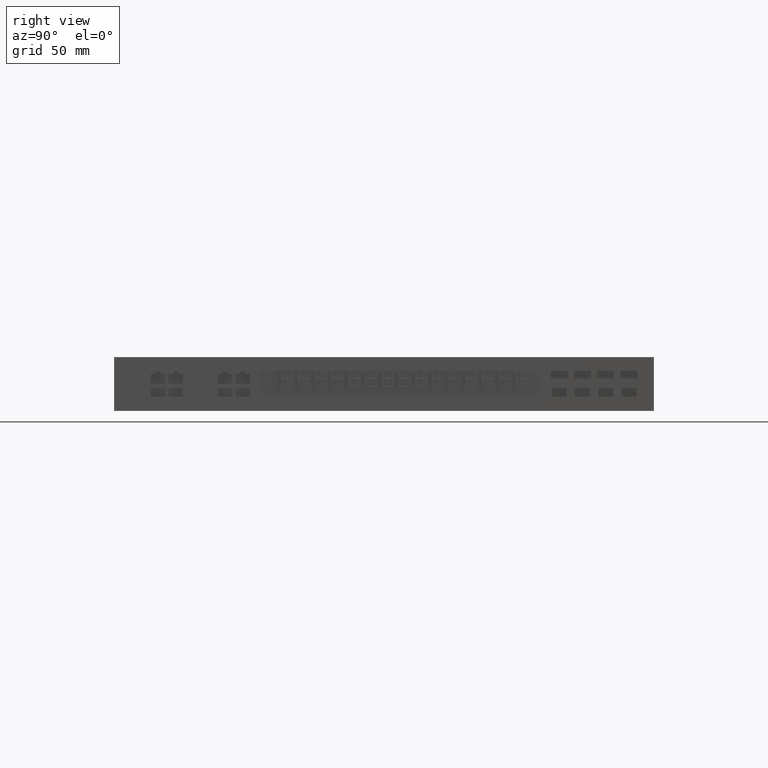
[diagram: clean part render]
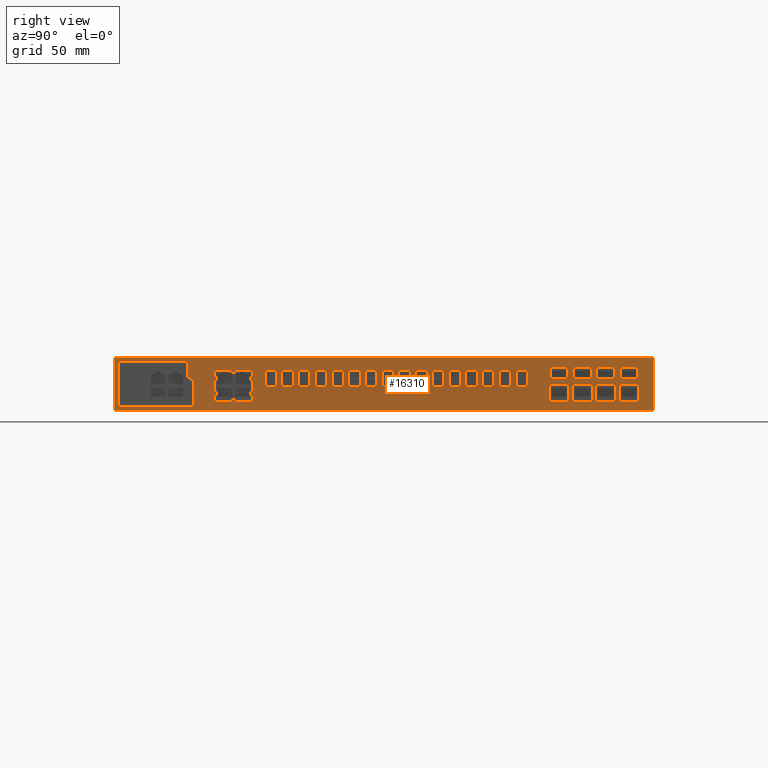
[diagram: same view with one face highlighted and labeled with its STEP entity id]
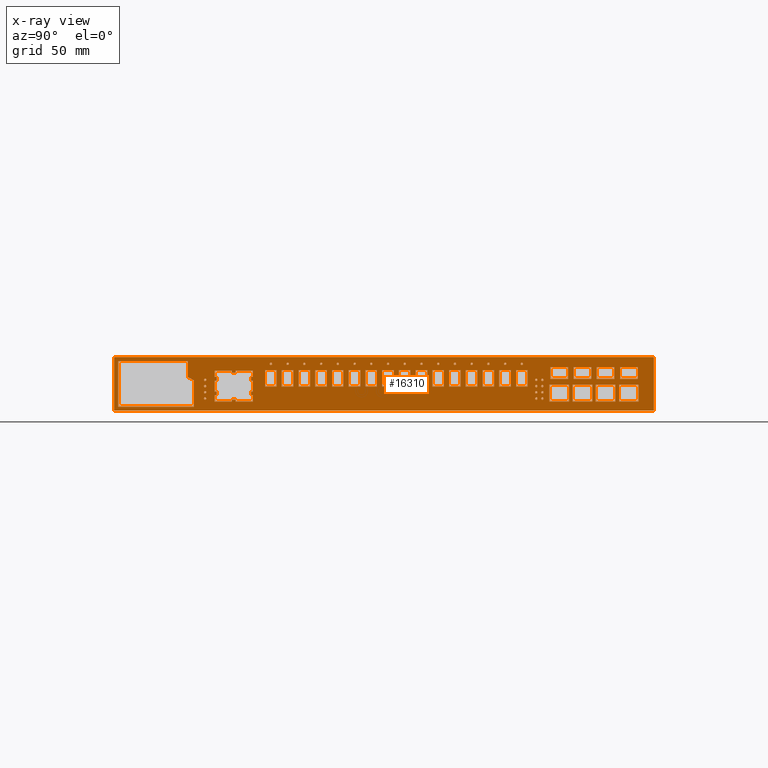
[diagram: x-ray of the same camera — body ghosted, the highlighted face saturated]
A machine part, right view. The second image highlights one B-rep face of the part: STEP entity #16310.
The next image is the same camera in x-ray: the body ghosted, the highlighted face saturated — about 0% of this face is hidden behind the body in this view.
In plain terms, the highlighted planar face has unit normal (1, 0, 0).
Its self-contained STEP definition (entity closure, byte-faithful):
#200=CARTESIAN_POINT('',(221.306013042565,4.40363222366137,
374.99999999998));
#210=VERTEX_POINT('',#200);
#240=CARTESIAN_POINT('',(0.,4.40363222366137,374.99999999998));
#250=DIRECTION('',(-1.,0.,0.));
#260=VECTOR('',#250,1.);
#270=LINE('',#240,#260);
#280=CARTESIAN_POINT('',(-220.693986957435,4.40363222366137,
374.99999999998));
#290=VERTEX_POINT('',#280);
#300=EDGE_CURVE('',#210,#290,#270,.T.);
#520=CARTESIAN_POINT('',(-220.693986957435,-39.5963677763395,
374.99999999998));
#530=VERTEX_POINT('',#520);
#560=CARTESIAN_POINT('',(0.,-39.5963677763395,374.99999999998));
#570=DIRECTION('',(1.,0.,0.));
#580=VECTOR('',#570,1.);
#590=LINE('',#560,#580);
#600=CARTESIAN_POINT('',(221.306013042565,-39.5963677763395,
374.99999999998));
#610=VERTEX_POINT('',#600);
#620=EDGE_CURVE('',#530,#610,#590,.T.);
#860=CARTESIAN_POINT('',(-220.693986957435,0.,374.99999999998));
#870=DIRECTION('',(0.,-1.,0.));
#880=VECTOR('',#870,1.);
#890=LINE('',#860,#880);
#900=EDGE_CURVE('',#290,#530,#890,.T.);
#1030=CARTESIAN_POINT('',(-231.744053107435,-40.6964339263395,
374.99999999998));
#1040=DIRECTION('',(0.,0.,1.));
#1050=DIRECTION('',(1.,0.,0.));
#1060=AXIS2_PLACEMENT_3D('',#1030,#1040,#1050);
#1070=PLANE('',#1060);
#1080=CARTESIAN_POINT('',(221.306013042565,0.,374.99999999998));
#1090=DIRECTION('',(0.,1.,0.));
#1100=VECTOR('',#1090,1.);
#1110=LINE('',#1080,#1100);
#1120=EDGE_CURVE('',#610,#210,#1110,.T.);
#1130=ORIENTED_EDGE('',*,*,#1120,.T.);
#1140=ORIENTED_EDGE('',*,*,#620,.T.);
#1150=ORIENTED_EDGE('',*,*,#900,.T.);
#1160=ORIENTED_EDGE('',*,*,#300,.T.);
#1170=EDGE_LOOP('',(#1160,#1150,#1140,#1130));
#1180=FACE_OUTER_BOUND('',#1170,.T.);
#1190=CARTESIAN_POINT('',(0.,-3.7963677763395,374.99999999998));
#1200=DIRECTION('',(1.,0.,0.));
#1210=VECTOR('',#1200,1.);
#1220=LINE('',#1190,#1210);
#1230=CARTESIAN_POINT('',(174.556013042565,-3.7963677763395,
374.99999999998));
#1240=VERTEX_POINT('',#1230);
#1250=CARTESIAN_POINT('',(189.056013042565,-3.7963677763395,
374.99999999998));
#1260=VERTEX_POINT('',#1250);
#1270=EDGE_CURVE('',#1240,#1260,#1220,.T.);
#1280=ORIENTED_EDGE('',*,*,#1270,.T.);
#1290=CARTESIAN_POINT('',(174.556013042565,0.,374.99999999998));
#1300=DIRECTION('',(0.,1.,0.));
#1310=VECTOR('',#1300,1.);
#1320=LINE('',#1290,#1310);
#1330=CARTESIAN_POINT('',(174.556013042565,-13.3963677763395,
374.99999999998));
#1340=VERTEX_POINT('',#1330);
#1350=EDGE_CURVE('',#1340,#1240,#1320,.T.);
#1360=ORIENTED_EDGE('',*,*,#1350,.T.);
#1370=CARTESIAN_POINT('',(0.,-13.3963677763395,374.99999999998));
#1380=DIRECTION('',(-1.,0.,0.));
#1390=VECTOR('',#1380,1.);
#1400=LINE('',#1370,#1390);
#1410=CARTESIAN_POINT('',(189.056013042565,-13.3963677763395,
374.99999999998));
#1420=VERTEX_POINT('',#1410);
#1430=EDGE_CURVE('',#1420,#1340,#1400,.T.);
#1440=ORIENTED_EDGE('',*,*,#1430,.T.);
#1450=CARTESIAN_POINT('',(189.056013042565,0.,374.99999999998));
#1460=DIRECTION('',(0.,-1.,0.));
#1470=VECTOR('',#1460,1.);
#1480=LINE('',#1450,#1470);
#1490=EDGE_CURVE('',#1260,#1420,#1480,.T.);
#1500=ORIENTED_EDGE('',*,*,#1490,.T.);
#1510=EDGE_LOOP('',(#1500,#1440,#1360,#1280));
#1520=FACE_BOUND('',#1510,.T.);
#1530=CARTESIAN_POINT('',(-146.193986957435,-19.3363677763382,
374.99999999998));
#1540=DIRECTION('',(0.,0.,1.));
#1550=DIRECTION('',(1.,0.,0.));
#1560=AXIS2_PLACEMENT_3D('',#1530,#1540,#1550);
#1570=CIRCLE('',#1560,0.999999999999984);
#1580=CARTESIAN_POINT('',(-145.193986957435,-19.3363677763382,
374.99999999998));
#1590=VERTEX_POINT('',#1580);
#1600=CARTESIAN_POINT('',(-147.193986957435,-19.3363677763382,
374.99999999998));
#1610=VERTEX_POINT('',#1600);
#1620=EDGE_CURVE('',#1590,#1610,#1570,.T.);
#1630=ORIENTED_EDGE('',*,*,#1620,.F.);
#1640=EDGE_CURVE('',#1610,#1590,#1570,.T.);
#1650=ORIENTED_EDGE('',*,*,#1640,.F.);
#1660=EDGE_LOOP('',(#1650,#1630));
#1670=FACE_BOUND('',#1660,.T.);
#1680=CARTESIAN_POINT('',(0.,-3.7963677763395,374.99999999998));
#1690=DIRECTION('',(1.,0.,0.));
#1700=VECTOR('',#1690,1.);
#1710=LINE('',#1680,#1700);
#1720=CARTESIAN_POINT('',(155.556013042565,-3.7963677763395,
374.99999999998));
#1730=VERTEX_POINT('',#1720);
#1740=CARTESIAN_POINT('',(170.056013042565,-3.7963677763395,
374.99999999998));
#1750=VERTEX_POINT('',#1740);
#1760=EDGE_CURVE('',#1730,#1750,#1710,.T.);
#1770=ORIENTED_EDGE('',*,*,#1760,.T.);
#1780=CARTESIAN_POINT('',(155.556013042565,0.,374.99999999998));
#1790=DIRECTION('',(0.,1.,0.));
#1800=VECTOR('',#1790,1.);
#1810=LINE('',#1780,#1800);
#1820=CARTESIAN_POINT('',(155.556013042565,-13.3963677763395,
374.99999999998));
#1830=VERTEX_POINT('',#1820);
#1840=EDGE_CURVE('',#1830,#1730,#1810,.T.);
#1850=ORIENTED_EDGE('',*,*,#1840,.T.);
#1860=CARTESIAN_POINT('',(0.,-13.3963677763395,374.99999999998));
#1870=DIRECTION('',(-1.,0.,0.));
#1880=VECTOR('',#1870,1.);
#1890=LINE('',#1860,#1880);
#1900=CARTESIAN_POINT('',(170.056013042565,-13.3963677763395,
374.99999999998));
#1910=VERTEX_POINT('',#1900);
#1920=EDGE_CURVE('',#1910,#1830,#1890,.T.);
#1930=ORIENTED_EDGE('',*,*,#1920,.T.);
#1940=CARTESIAN_POINT('',(170.056013042565,0.,374.99999999998));
#1950=DIRECTION('',(0.,-1.,0.));
#1960=VECTOR('',#1950,1.);
#1970=LINE('',#1940,#1960);
#1980=EDGE_CURVE('',#1750,#1910,#1970,.T.);
#1990=ORIENTED_EDGE('',*,*,#1980,.T.);
#2000=EDGE_LOOP('',(#1990,#1930,#1850,#1770));
#2010=FACE_BOUND('',#2000,.T.);
#2020=CARTESIAN_POINT('',(0.,-18.1963677763395,374.99999999998));
#2030=DIRECTION('',(1.,0.,0.));
#2040=VECTOR('',#2030,1.);
#2050=LINE('',#2020,#2040);
#2060=CARTESIAN_POINT('',(192.756013042565,-18.1963677763395,
374.99999999998));
#2070=VERTEX_POINT('',#2060);
#2080=CARTESIAN_POINT('',(208.856013042565,-18.1963677763395,
374.99999999998));
#2090=VERTEX_POINT('',#2080);
#2100=EDGE_CURVE('',#2070,#2090,#2050,.T.);
#2110=ORIENTED_EDGE('',*,*,#2100,.T.);
#2120=CARTESIAN_POINT('',(192.756013042565,0.,374.99999999998));
#2130=DIRECTION('',(0.,1.,0.));
#2140=VECTOR('',#2130,1.);
#2150=LINE('',#2120,#2140);
#2160=CARTESIAN_POINT('',(192.756013042565,-31.9963677763395,
374.99999999998));
#2170=VERTEX_POINT('',#2160);
#2180=EDGE_CURVE('',#2170,#2070,#2150,.T.);
#2190=ORIENTED_EDGE('',*,*,#2180,.T.);
#2200=CARTESIAN_POINT('',(0.,-31.9963677763395,374.99999999998));
#2210=DIRECTION('',(-1.,0.,0.));
#2220=VECTOR('',#2210,1.);
#2230=LINE('',#2200,#2220);
#2240=CARTESIAN_POINT('',(208.856013042565,-31.9963677763395,
374.99999999998));
#2250=VERTEX_POINT('',#2240);
#2260=EDGE_CURVE('',#2250,#2170,#2230,.T.);
#2270=ORIENTED_EDGE('',*,*,#2260,.T.);
#2280=CARTESIAN_POINT('',(208.856013042565,0.,374.99999999998));
#2290=DIRECTION('',(0.,-1.,0.));
#2300=VECTOR('',#2290,1.);
#2310=LINE('',#2280,#2300);
#2320=EDGE_CURVE('',#2090,#2250,#2310,.T.);
#2330=ORIENTED_EDGE('',*,*,#2320,.T.);
#2340=EDGE_LOOP('',(#2330,#2270,#2190,#2110));
#2350=FACE_BOUND('',#2340,.T.);
#2360=CARTESIAN_POINT('',(0.,-3.7963677763395,374.99999999998));
#2370=DIRECTION('',(1.,0.,0.));
#2380=VECTOR('',#2370,1.);
#2390=LINE('',#2360,#2380);
#2400=CARTESIAN_POINT('',(193.556013042565,-3.7963677763395,
374.99999999998));
#2410=VERTEX_POINT('',#2400);
#2420=CARTESIAN_POINT('',(208.056013042565,-3.7963677763395,
374.99999999998));
#2430=VERTEX_POINT('',#2420);
#2440=EDGE_CURVE('',#2410,#2430,#2390,.T.);
#2450=ORIENTED_EDGE('',*,*,#2440,.T.);
#2460=CARTESIAN_POINT('',(193.556013042565,0.,374.99999999998));
#2470=DIRECTION('',(0.,1.,0.));
#2480=VECTOR('',#2470,1.);
#2490=LINE('',#2460,#2480);
#2500=CARTESIAN_POINT('',(193.556013042565,-13.3963677763395,
374.99999999998));
#2510=VERTEX_POINT('',#2500);
#2520=EDGE_CURVE('',#2510,#2410,#2490,.T.);
#2530=ORIENTED_EDGE('',*,*,#2520,.T.);
#2540=CARTESIAN_POINT('',(0.,-13.3963677763395,374.99999999998));
#2550=DIRECTION('',(-1.,0.,0.));
#2560=VECTOR('',#2550,1.);
#2570=LINE('',#2540,#2560);
#2580=CARTESIAN_POINT('',(208.056013042565,-13.3963677763395,
374.99999999998));
#2590=VERTEX_POINT('',#2580);
#2600=EDGE_CURVE('',#2590,#2510,#2570,.T.);
#2610=ORIENTED_EDGE('',*,*,#2600,.T.);
#2620=CARTESIAN_POINT('',(208.056013042565,0.,374.99999999998));
#2630=DIRECTION('',(0.,-1.,0.));
#2640=VECTOR('',#2630,1.);
#2650=LINE('',#2620,#2640);
#2660=EDGE_CURVE('',#2430,#2590,#2650,.T.);
#2670=ORIENTED_EDGE('',*,*,#2660,.T.);
#2680=EDGE_LOOP('',(#2670,#2610,#2530,#2450));
#2690=FACE_BOUND('',#2680,.T.);
#2700=CARTESIAN_POINT('',(0.,-3.7963677763395,374.99999999998));
#2710=DIRECTION('',(1.,0.,0.));
#2720=VECTOR('',#2710,1.);
#2730=LINE('',#2700,#2720);
#2740=CARTESIAN_POINT('',(136.556013042565,-3.7963677763395,
374.99999999998));
#2750=VERTEX_POINT('',#2740);
#2760=CARTESIAN_POINT('',(151.056013042565,-3.7963677763395,
374.99999999998));
#2770=VERTEX_POINT('',#2760);
#2780=EDGE_CURVE('',#2750,#2770,#2730,.T.);
#2790=ORIENTED_EDGE('',*,*,#2780,.T.);
#2800=CARTESIAN_POINT('',(136.556013042565,0.,374.99999999998));
#2810=DIRECTION('',(0.,1.,0.));
#2820=VECTOR('',#2810,1.);
#2830=LINE('',#2800,#2820);
#2840=CARTESIAN_POINT('',(136.556013042565,-13.3963677763395,
374.99999999998));
#2850=VERTEX_POINT('',#2840);
#2860=EDGE_CURVE('',#2850,#2750,#2830,.T.);
#2870=ORIENTED_EDGE('',*,*,#2860,.T.);
#2880=CARTESIAN_POINT('',(0.,-13.3963677763395,374.99999999998));
#2890=DIRECTION('',(-1.,0.,0.));
#2900=VECTOR('',#2890,1.);
#2910=LINE('',#2880,#2900);
#2920=CARTESIAN_POINT('',(151.056013042565,-13.3963677763395,
374.99999999998));
#2930=VERTEX_POINT('',#2920);
#2940=EDGE_CURVE('',#2930,#2850,#2910,.T.);
#2950=ORIENTED_EDGE('',*,*,#2940,.T.);
#2960=CARTESIAN_POINT('',(151.056013042565,0.,374.99999999998));
#2970=DIRECTION('',(0.,-1.,0.));
#2980=VECTOR('',#2970,1.);
#2990=LINE('',#2960,#2980);
#3000=EDGE_CURVE('',#2770,#2930,#2990,.T.);
#3010=ORIENTED_EDGE('',*,*,#3000,.T.);
#3020=EDGE_LOOP('',(#3010,#2950,#2870,#2790));
#3030=FACE_BOUND('',#3020,.T.);
#3040=CARTESIAN_POINT('',(125.006013042565,-14.2563677763382,
374.99999999998));
#3050=DIRECTION('',(0.,0.,1.));
#3060=DIRECTION('',(1.,0.,0.));
#3070=AXIS2_PLACEMENT_3D('',#3040,#3050,#3060);
#3080=CIRCLE('',#3070,1.);
#3090=CARTESIAN_POINT('',(126.006013042565,-14.2563677763382,
374.99999999998));
#3100=VERTEX_POINT('',#3090);
#3110=CARTESIAN_POINT('',(124.006013042565,-14.2563677763382,
374.99999999998));
#3120=VERTEX_POINT('',#3110);
#3130=EDGE_CURVE('',#3100,#3120,#3080,.T.);
#3140=ORIENTED_EDGE('',*,*,#3130,.F.);
#3150=EDGE_CURVE('',#3120,#3100,#3080,.T.);
#3160=ORIENTED_EDGE('',*,*,#3150,.F.);
#3170=EDGE_LOOP('',(#3160,#3140));
#3180=FACE_BOUND('',#3170,.T.);
#3190=CARTESIAN_POINT('',(130.006013042565,-19.3363677763382,
374.99999999998));
#3200=DIRECTION('',(0.,0.,1.));
#3210=DIRECTION('',(1.,0.,0.));
#3220=AXIS2_PLACEMENT_3D('',#3190,#3200,#3210);
#3230=CIRCLE('',#3220,1.00000000000004);
#3240=CARTESIAN_POINT('',(129.006013042565,-19.3363677763382,
374.99999999998));
#3250=VERTEX_POINT('',#3240);
#3260=CARTESIAN_POINT('',(131.006013042565,-19.3363677763382,
374.99999999998));
#3270=VERTEX_POINT('',#3260);
#3280=EDGE_CURVE('',#3250,#3270,#3230,.T.);
#3290=ORIENTED_EDGE('',*,*,#3280,.F.);
#3300=EDGE_CURVE('',#3270,#3250,#3230,.T.);
#3310=ORIENTED_EDGE('',*,*,#3300,.F.);
#3320=EDGE_LOOP('',(#3310,#3290));
#3330=FACE_BOUND('',#3320,.T.);
#3340=CARTESIAN_POINT('',(189.856013042565,0.,374.99999999998));
#3350=DIRECTION('',(0.,-1.,0.));
#3360=VECTOR('',#3350,1.);
#3370=LINE('',#3340,#3360);
#3380=CARTESIAN_POINT('',(189.856013042565,-18.1963677763395,
374.99999999998));
#3390=VERTEX_POINT('',#3380);
#3400=CARTESIAN_POINT('',(189.856013042565,-31.9963677763395,
374.99999999998));
#3410=VERTEX_POINT('',#3400);
#3420=EDGE_CURVE('',#3390,#3410,#3370,.T.);
#3430=ORIENTED_EDGE('',*,*,#3420,.T.);
#3440=CARTESIAN_POINT('',(0.,-18.1963677763395,374.99999999998));
#3450=DIRECTION('',(1.,0.,0.));
#3460=VECTOR('',#3450,1.);
#3470=LINE('',#3440,#3460);
#3480=CARTESIAN_POINT('',(173.756013042565,-18.1963677763395,
374.99999999998));
#3490=VERTEX_POINT('',#3480);
#3500=EDGE_CURVE('',#3490,#3390,#3470,.T.);
#3510=ORIENTED_EDGE('',*,*,#3500,.T.);
#3520=CARTESIAN_POINT('',(173.756013042565,0.,374.99999999998));
#3530=DIRECTION('',(0.,1.,0.));
#3540=VECTOR('',#3530,1.);
#3550=LINE('',#3520,#3540);
#3560=CARTESIAN_POINT('',(173.756013042565,-31.9963677763395,
374.99999999998));
#3570=VERTEX_POINT('',#3560);
#3580=EDGE_CURVE('',#3570,#3490,#3550,.T.);
#3590=ORIENTED_EDGE('',*,*,#3580,.T.);
#3600=CARTESIAN_POINT('',(0.,-31.9963677763395,374.99999999998));
#3610=DIRECTION('',(-1.,0.,0.));
#3620=VECTOR('',#3610,1.);
#3630=LINE('',#3600,#3620);
#3640=EDGE_CURVE('',#3410,#3570,#3630,.T.);
#3650=ORIENTED_EDGE('',*,*,#3640,.T.);
#3660=EDGE_LOOP('',(#3650,#3590,#3510,#3430));
#3670=FACE_BOUND('',#3660,.T.);
#3680=CARTESIAN_POINT('',(135.756013042565,0.,374.99999999998));
#3690=DIRECTION('',(0.,1.,0.));
#3700=VECTOR('',#3690,1.);
#3710=LINE('',#3680,#3700);
#3720=CARTESIAN_POINT('',(135.756013042565,-31.9963677763395,
374.99999999998));
#3730=VERTEX_POINT('',#3720);
#3740=CARTESIAN_POINT('',(135.756013042565,-18.1963677763395,
374.99999999998));
#3750=VERTEX_POINT('',#3740);
#3760=EDGE_CURVE('',#3730,#3750,#3710,.T.);
#3770=ORIENTED_EDGE('',*,*,#3760,.T.);
#3780=CARTESIAN_POINT('',(0.,-31.9963677763395,374.99999999998));
#3790=DIRECTION('',(-1.,0.,0.));
#3800=VECTOR('',#3790,1.);
#3810=LINE('',#3780,#3800);
#3820=CARTESIAN_POINT('',(151.856013042565,-31.9963677763395,
374.99999999998));
#3830=VERTEX_POINT('',#3820);
#3840=EDGE_CURVE('',#3830,#3730,#3810,.T.);
#3850=ORIENTED_EDGE('',*,*,#3840,.T.);
#3860=CARTESIAN_POINT('',(151.856013042565,0.,374.99999999998));
#3870=DIRECTION('',(0.,-1.,0.));
#3880=VECTOR('',#3870,1.);
#3890=LINE('',#3860,#3880);
#3900=CARTESIAN_POINT('',(151.856013042565,-18.1963677763395,
374.99999999998));
#3910=VERTEX_POINT('',#3900);
#3920=EDGE_CURVE('',#3910,#3830,#3890,.T.);
#3930=ORIENTED_EDGE('',*,*,#3920,.T.);
#3940=CARTESIAN_POINT('',(0.,-18.1963677763395,374.99999999998));
#3950=DIRECTION('',(1.,0.,0.));
#3960=VECTOR('',#3950,1.);
#3970=LINE('',#3940,#3960);
#3980=EDGE_CURVE('',#3750,#3910,#3970,.T.);
#3990=ORIENTED_EDGE('',*,*,#3980,.T.);
#4000=EDGE_LOOP('',(#3990,#3930,#3850,#3770));
#4010=FACE_BOUND('',#4000,.T.);
#4020=CARTESIAN_POINT('',(170.856013042565,0.,374.99999999998));
#4030=DIRECTION('',(0.,-1.,0.));
#4040=VECTOR('',#4030,1.);
#4050=LINE('',#4020,#4040);
#4060=CARTESIAN_POINT('',(170.856013042565,-18.1963677763395,
374.99999999998));
#4070=VERTEX_POINT('',#4060);
#4080=CARTESIAN_POINT('',(170.856013042565,-31.9963677763395,
374.99999999998));
#4090=VERTEX_POINT('',#4080);
#4100=EDGE_CURVE('',#4070,#4090,#4050,.T.);
#4110=ORIENTED_EDGE('',*,*,#4100,.T.);
#4120=CARTESIAN_POINT('',(0.,-18.1963677763395,374.99999999998));
#4130=DIRECTION('',(1.,0.,0.));
#4140=VECTOR('',#4130,1.);
#4150=LINE('',#4120,#4140);
#4160=CARTESIAN_POINT('',(154.756013042565,-18.1963677763395,
374.99999999998));
#4170=VERTEX_POINT('',#4160);
#4180=EDGE_CURVE('',#4170,#4070,#4150,.T.);
#4190=ORIENTED_EDGE('',*,*,#4180,.T.);
#4200=CARTESIAN_POINT('',(154.756013042565,0.,374.99999999998));
#4210=DIRECTION('',(0.,1.,0.));
#4220=VECTOR('',#4210,1.);
#4230=LINE('',#4200,#4220);
#4240=CARTESIAN_POINT('',(154.756013042565,-31.9963677763395,
374.99999999998));
#4250=VERTEX_POINT('',#4240);
#4260=EDGE_CURVE('',#4250,#4170,#4230,.T.);
#4270=ORIENTED_EDGE('',*,*,#4260,.T.);
#4280=CARTESIAN_POINT('',(0.,-31.9963677763395,374.99999999998));
#4290=DIRECTION('',(-1.,0.,0.));
#4300=VECTOR('',#4290,1.);
#4310=LINE('',#4280,#4300);
#4320=EDGE_CURVE('',#4090,#4250,#4310,.T.);
#4330=ORIENTED_EDGE('',*,*,#4320,.T.);
#4340=EDGE_LOOP('',(#4330,#4270,#4190,#4110));
#4350=FACE_BOUND('',#4340,.T.);
#4360=CARTESIAN_POINT('',(-146.193986957435,-24.416367776338,
374.99999999998));
#4370=DIRECTION('',(0.,0.,1.));
#4380=DIRECTION('',(1.,0.,0.));
#4390=AXIS2_PLACEMENT_3D('',#4360,#4370,#4380);
#4400=CIRCLE('',#4390,1.00000000000002);
#4410=CARTESIAN_POINT('',(-145.193986957435,-24.416367776338,
374.99999999998));
#4420=VERTEX_POINT('',#4410);
#4430=CARTESIAN_POINT('',(-147.193986957435,-24.416367776338,
374.99999999998));
#4440=VERTEX_POINT('',#4430);
#4450=EDGE_CURVE('',#4420,#4440,#4400,.T.);
#4460=ORIENTED_EDGE('',*,*,#4450,.F.);
#4470=EDGE_CURVE('',#4440,#4420,#4400,.T.);
#4480=ORIENTED_EDGE('',*,*,#4470,.F.);
#4490=EDGE_LOOP('',(#4480,#4460));
#4500=FACE_BOUND('',#4490,.T.);
#4510=CARTESIAN_POINT('',(125.006013042565,-24.416367776338,
374.99999999998));
#4520=DIRECTION('',(0.,0.,1.));
#4530=DIRECTION('',(1.,0.,0.));
#4540=AXIS2_PLACEMENT_3D('',#4510,#4520,#4530);
#4550=CIRCLE('',#4540,0.999999999999987);
#4560=CARTESIAN_POINT('',(124.006013042565,-24.416367776338,
374.99999999998));
#4570=VERTEX_POINT('',#4560);
#4580=CARTESIAN_POINT('',(126.006013042565,-24.416367776338,
374.99999999998));
#4590=VERTEX_POINT('',#4580);
#4600=EDGE_CURVE('',#4570,#4590,#4550,.T.);
#4610=ORIENTED_EDGE('',*,*,#4600,.F.);
#4620=EDGE_CURVE('',#4590,#4570,#4550,.T.);
#4630=ORIENTED_EDGE('',*,*,#4620,.F.);
#4640=EDGE_LOOP('',(#4630,#4610));
#4650=FACE_BOUND('',#4640,.T.);
#4660=CARTESIAN_POINT('',(130.006013042565,-29.4963677763381,
374.99999999998));
#4670=DIRECTION('',(0.,0.,1.));
#4680=DIRECTION('',(1.,0.,0.));
#4690=AXIS2_PLACEMENT_3D('',#4660,#4670,#4680);
#4700=CIRCLE('',#4690,0.999999999999987);
#4710=CARTESIAN_POINT('',(131.006013042565,-29.4963677763381,
374.99999999998));
#4720=VERTEX_POINT('',#4710);
#4730=CARTESIAN_POINT('',(129.006013042565,-29.4963677763381,
374.99999999998));
#4740=VERTEX_POINT('',#4730);
#4750=EDGE_CURVE('',#4720,#4740,#4700,.T.);
#4760=ORIENTED_EDGE('',*,*,#4750,.F.);
#4770=EDGE_CURVE('',#4740,#4720,#4700,.T.);
#4780=ORIENTED_EDGE('',*,*,#4770,.F.);
#4790=EDGE_LOOP('',(#4780,#4760));
#4800=FACE_BOUND('',#4790,.T.);
#4810=CARTESIAN_POINT('',(-138.318986957435,0.,374.99999999998));
#4820=DIRECTION('',(0.,1.,0.));
#4830=VECTOR('',#4820,1.);
#4840=LINE('',#4810,#4830);
#4850=CARTESIAN_POINT('',(-138.318986957435,-31.9963677763395,
374.99999999998));
#4860=VERTEX_POINT('',#4850);
#4870=CARTESIAN_POINT('',(-138.318986957435,-26.8363677763395,
374.99999999998));
#4880=VERTEX_POINT('',#4870);
#4890=EDGE_CURVE('',#4860,#4880,#4840,.T.);
#4900=ORIENTED_EDGE('',*,*,#4890,.T.);
#4910=CARTESIAN_POINT('',(0.,-31.9963677763395,374.99999999998));
#4920=DIRECTION('',(-1.,0.,0.));
#4930=VECTOR('',#4920,1.);
#4940=LINE('',#4910,#4930);
#4950=CARTESIAN_POINT('',(-124.168986957435,-31.9963677763395,
374.99999999998));
#4960=VERTEX_POINT('',#4950);
#4970=EDGE_CURVE('',#4960,#4860,#4940,.T.);
#4980=ORIENTED_EDGE('',*,*,#4970,.T.);
#4990=CARTESIAN_POINT('',(-124.168986957435,0.,374.99999999998));
#5000=DIRECTION('',(0.,-1.,0.));
#5010=VECTOR('',#5000,1.);
#5020=LINE('',#4990,#5010);
#5030=CARTESIAN_POINT('',(-124.168986957435,-30.4963677763395,
374.99999999998));
#5040=VERTEX_POINT('',#5030);
#5050=EDGE_CURVE('',#5040,#4960,#5020,.T.);
#5060=ORIENTED_EDGE('',*,*,#5050,.T.);
#5070=CARTESIAN_POINT('',(0.,-30.4963677763395,374.99999999998));
#5080=DIRECTION('',(-1.,0.,0.));
#5090=VECTOR('',#5080,1.);
#5100=LINE('',#5070,#5090);
#5110=CARTESIAN_POINT('',(-121.168986957435,-30.4963677763395,
374.99999999998));
#5120=VERTEX_POINT('',#5110);
#5130=EDGE_CURVE('',#5120,#5040,#5100,.T.);
#5140=ORIENTED_EDGE('',*,*,#5130,.T.);
#5150=CARTESIAN_POINT('',(-121.168986957435,0.,374.99999999998));
#5160=DIRECTION('',(0.,1.,0.));
#5170=VECTOR('',#5160,1.);
#5180=LINE('',#5150,#5170);
#5190=CARTESIAN_POINT('',(-121.168986957435,-31.9963677763395,
374.99999999998));
#5200=VERTEX_POINT('',#5190);
#5210=EDGE_CURVE('',#5200,#5120,#5180,.T.);
#5220=ORIENTED_EDGE('',*,*,#5210,.T.);
#5230=CARTESIAN_POINT('',(0.,-31.9963677763395,374.99999999998));
#5240=DIRECTION('',(-1.,0.,0.));
#5250=VECTOR('',#5240,1.);
#5260=LINE('',#5230,#5250);
#5270=CARTESIAN_POINT('',(-107.018986957435,-31.9963677763395,
374.99999999998));
#5280=VERTEX_POINT('',#5270);
#5290=EDGE_CURVE('',#5280,#5200,#5260,.T.);
#5300=ORIENTED_EDGE('',*,*,#5290,.T.);
#5310=CARTESIAN_POINT('',(-107.018986957435,0.,374.99999999998));
#5320=DIRECTION('',(0.,-1.,0.));
#5330=VECTOR('',#5320,1.);
#5340=LINE('',#5310,#5330);
#5350=CARTESIAN_POINT('',(-107.018986957435,-26.8363677763395,
374.99999999998));
#5360=VERTEX_POINT('',#5350);
#5370=EDGE_CURVE('',#5360,#5280,#5340,.T.);
#5380=ORIENTED_EDGE('',*,*,#5370,.T.);
#5390=CARTESIAN_POINT('',(0.,-26.8363677763395,374.99999999998));
#5400=DIRECTION('',(1.,0.,0.));
#5410=VECTOR('',#5400,1.);
#5420=LINE('',#5390,#5410);
#5430=CARTESIAN_POINT('',(-108.518986957435,-26.8363677763395,
374.99999999998));
#5440=VERTEX_POINT('',#5430);
#5450=EDGE_CURVE('',#5440,#5360,#5420,.T.);
#5460=ORIENTED_EDGE('',*,*,#5450,.T.);
#5470=CARTESIAN_POINT('',(-108.518986957435,0.,374.99999999998));
#5480=DIRECTION('',(0.,-1.,0.));
#5490=VECTOR('',#5480,1.);
#5500=LINE('',#5470,#5490);
#5510=CARTESIAN_POINT('',(-108.518986957435,-23.8363677763395,
374.99999999998));
#5520=VERTEX_POINT('',#5510);
#5530=EDGE_CURVE('',#5520,#5440,#5500,.T.);
#5540=ORIENTED_EDGE('',*,*,#5530,.T.);
#5550=CARTESIAN_POINT('',(0.,-23.8363677763395,374.99999999998));
#5560=DIRECTION('',(-1.,0.,0.));
#5570=VECTOR('',#5560,1.);
#5580=LINE('',#5550,#5570);
#5590=CARTESIAN_POINT('',(-107.018986957435,-23.8363677763395,
374.99999999998));
#5600=VERTEX_POINT('',#5590);
#5610=EDGE_CURVE('',#5600,#5520,#5580,.T.);
#5620=ORIENTED_EDGE('',*,*,#5610,.T.);
#5630=CARTESIAN_POINT('',(-107.018986957435,0.,374.99999999998));
#5640=DIRECTION('',(0.,-1.,0.));
#5650=VECTOR('',#5640,1.);
#5660=LINE('',#5630,#5650);
#5670=CARTESIAN_POINT('',(-107.018986957435,-14.8563677763395,
374.99999999998));
#5680=VERTEX_POINT('',#5670);
#5690=EDGE_CURVE('',#5680,#5600,#5660,.T.);
#5700=ORIENTED_EDGE('',*,*,#5690,.T.);
#5710=CARTESIAN_POINT('',(0.,-14.8563677763395,374.99999999998));
#5720=DIRECTION('',(1.,0.,0.));
#5730=VECTOR('',#5720,1.);
#5740=LINE('',#5710,#5730);
#5750=CARTESIAN_POINT('',(-108.518986957435,-14.8563677763395,
374.99999999998));
#5760=VERTEX_POINT('',#5750);
#5770=EDGE_CURVE('',#5760,#5680,#5740,.T.);
#5780=ORIENTED_EDGE('',*,*,#5770,.T.);
#5790=CARTESIAN_POINT('',(-108.518986957435,0.,374.99999999998));
#5800=DIRECTION('',(0.,-1.,0.));
#5810=VECTOR('',#5800,1.);
#5820=LINE('',#5790,#5810);
#5830=CARTESIAN_POINT('',(-108.518986957435,-11.8563677763395,
374.99999999998));
#5840=VERTEX_POINT('',#5830);
#5850=EDGE_CURVE('',#5840,#5760,#5820,.T.);
#5860=ORIENTED_EDGE('',*,*,#5850,.T.);
#5870=CARTESIAN_POINT('',(0.,-11.8563677763395,374.99999999998));
#5880=DIRECTION('',(-1.,0.,0.));
#5890=VECTOR('',#5880,1.);
#5900=LINE('',#5870,#5890);
#5910=CARTESIAN_POINT('',(-107.018986957435,-11.8563677763395,
374.99999999998));
#5920=VERTEX_POINT('',#5910);
#5930=EDGE_CURVE('',#5920,#5840,#5900,.T.);
#5940=ORIENTED_EDGE('',*,*,#5930,.T.);
#5950=CARTESIAN_POINT('',(-107.018986957435,0.,374.99999999998));
#5960=DIRECTION('',(0.,-1.,0.));
#5970=VECTOR('',#5960,1.);
#5980=LINE('',#5950,#5970);
#5990=CARTESIAN_POINT('',(-107.018986957435,-6.6963677763395,
374.99999999998));
#6000=VERTEX_POINT('',#5990);
#6010=EDGE_CURVE('',#6000,#5920,#5980,.T.);
#6020=ORIENTED_EDGE('',*,*,#6010,.T.);
#6030=CARTESIAN_POINT('',(0.,-6.6963677763395,374.99999999998));
#6040=DIRECTION('',(1.,0.,0.));
#6050=VECTOR('',#6040,1.);
#6060=LINE('',#6030,#6050);
#6070=CARTESIAN_POINT('',(-121.168986957435,-6.6963677763395,
374.99999999998));
#6080=VERTEX_POINT('',#6070);
#6090=EDGE_CURVE('',#6080,#6000,#6060,.T.);
#6100=ORIENTED_EDGE('',*,*,#6090,.T.);
#6110=CARTESIAN_POINT('',(-121.168986957435,0.,374.99999999998));
#6120=DIRECTION('',(0.,1.,0.));
#6130=VECTOR('',#6120,1.);
#6140=LINE('',#6110,#6130);
#6150=CARTESIAN_POINT('',(-121.168986957435,-8.1963677763395,
374.99999999998));
#6160=VERTEX_POINT('',#6150);
#6170=EDGE_CURVE('',#6160,#6080,#6140,.T.);
#6180=ORIENTED_EDGE('',*,*,#6170,.T.);
#6190=CARTESIAN_POINT('',(0.,-8.1963677763395,374.99999999998));
#6200=DIRECTION('',(1.,0.,0.));
#6210=VECTOR('',#6200,1.);
#6220=LINE('',#6190,#6210);
#6230=CARTESIAN_POINT('',(-124.168986957435,-8.1963677763395,
374.99999999998));
#6240=VERTEX_POINT('',#6230);
#6250=EDGE_CURVE('',#6240,#6160,#6220,.T.);
#6260=ORIENTED_EDGE('',*,*,#6250,.T.);
#6270=CARTESIAN_POINT('',(-124.168986957435,0.,374.99999999998));
#6280=DIRECTION('',(0.,-1.,0.));
#6290=VECTOR('',#6280,1.);
#6300=LINE('',#6270,#6290);
#6310=CARTESIAN_POINT('',(-124.168986957435,-6.6963677763395,
374.99999999998));
#6320=VERTEX_POINT('',#6310);
#6330=EDGE_CURVE('',#6320,#6240,#6300,.T.);
#6340=ORIENTED_EDGE('',*,*,#6330,.T.);
#6350=CARTESIAN_POINT('',(0.,-6.6963677763395,374.99999999998));
#6360=DIRECTION('',(1.,0.,0.));
#6370=VECTOR('',#6360,1.);
#6380=LINE('',#6350,#6370);
#6390=CARTESIAN_POINT('',(-138.318986957435,-6.6963677763395,
374.99999999998));
#6400=VERTEX_POINT('',#6390);
#6410=EDGE_CURVE('',#6400,#6320,#6380,.T.);
#6420=ORIENTED_EDGE('',*,*,#6410,.T.);
#6430=CARTESIAN_POINT('',(-138.318986957435,0.,374.99999999998));
#6440=DIRECTION('',(0.,1.,0.));
#6450=VECTOR('',#6440,1.);
#6460=LINE('',#6430,#6450);
#6470=CARTESIAN_POINT('',(-138.318986957435,-11.8563677763395,
374.99999999998));
#6480=VERTEX_POINT('',#6470);
#6490=EDGE_CURVE('',#6480,#6400,#6460,.T.);
#6500=ORIENTED_EDGE('',*,*,#6490,.T.);
#6510=CARTESIAN_POINT('',(0.,-11.8563677763395,374.99999999998));
#6520=DIRECTION('',(-1.,0.,0.));
#6530=VECTOR('',#6520,1.);
#6540=LINE('',#6510,#6530);
#6550=CARTESIAN_POINT('',(-136.818986957435,-11.8563677763395,
374.99999999998));
#6560=VERTEX_POINT('',#6550);
#6570=EDGE_CURVE('',#6560,#6480,#6540,.T.);
#6580=ORIENTED_EDGE('',*,*,#6570,.T.);
#6590=CARTESIAN_POINT('',(-136.818986957435,0.,374.99999999998));
#6600=DIRECTION('',(0.,1.,0.));
#6610=VECTOR('',#6600,1.);
#6620=LINE('',#6590,#6610);
#6630=CARTESIAN_POINT('',(-136.818986957435,-14.8563677763395,
374.99999999998));
#6640=VERTEX_POINT('',#6630);
#6650=EDGE_CURVE('',#6640,#6560,#6620,.T.);
#6660=ORIENTED_EDGE('',*,*,#6650,.T.);
#6670=CARTESIAN_POINT('',(0.,-14.8563677763395,374.99999999998));
#6680=DIRECTION('',(1.,0.,0.));
#6690=VECTOR('',#6680,1.);
#6700=LINE('',#6670,#6690);
#6710=CARTESIAN_POINT('',(-138.318986957435,-14.8563677763395,
374.99999999998));
#6720=VERTEX_POINT('',#6710);
#6730=EDGE_CURVE('',#6720,#6640,#6700,.T.);
#6740=ORIENTED_EDGE('',*,*,#6730,.T.);
#6750=CARTESIAN_POINT('',(-138.318986957435,0.,374.99999999998));
#6760=DIRECTION('',(0.,1.,0.));
#6770=VECTOR('',#6760,1.);
#6780=LINE('',#6750,#6770);
#6790=CARTESIAN_POINT('',(-138.318986957435,-23.8363677763395,
374.99999999998));
#6800=VERTEX_POINT('',#6790);
#6810=EDGE_CURVE('',#6800,#6720,#6780,.T.);
#6820=ORIENTED_EDGE('',*,*,#6810,.T.);
#6830=CARTESIAN_POINT('',(0.,-23.8363677763395,374.99999999998));
#6840=DIRECTION('',(-1.,0.,0.));
#6850=VECTOR('',#6840,1.);
#6860=LINE('',#6830,#6850);
#6870=CARTESIAN_POINT('',(-136.818986957435,-23.8363677763395,
374.99999999998));
#6880=VERTEX_POINT('',#6870);
#6890=EDGE_CURVE('',#6880,#6800,#6860,.T.);
#6900=ORIENTED_EDGE('',*,*,#6890,.T.);
#6910=CARTESIAN_POINT('',(-136.818986957435,0.,374.99999999998));
#6920=DIRECTION('',(0.,1.,0.));
#6930=VECTOR('',#6920,1.);
#6940=LINE('',#6910,#6930);
#6950=CARTESIAN_POINT('',(-136.818986957435,-26.8363677763395,
374.99999999998));
#6960=VERTEX_POINT('',#6950);
#6970=EDGE_CURVE('',#6960,#6880,#6940,.T.);
#6980=ORIENTED_EDGE('',*,*,#6970,.T.);
#6990=CARTESIAN_POINT('',(0.,-26.8363677763395,374.99999999998));
#7000=DIRECTION('',(1.,0.,0.));
#7010=VECTOR('',#7000,1.);
#7020=LINE('',#6990,#7010);
#7030=EDGE_CURVE('',#4880,#6960,#7020,.T.);
#7040=ORIENTED_EDGE('',*,*,#7030,.T.);
#7050=EDGE_LOOP('',(#7040,#6980,#6900,#6820,#6740,#6660,#6580,#6500,
#6420,#6340,#6260,#6180,#6100,#6020,#5940,#5860,#5780,#5700,#5620,#5540,
#5460,#5380,#5300,#5220,#5140,#5060,#4980,#4900));
#7060=FACE_BOUND('',#7050,.T.);
#7070=CARTESIAN_POINT('',(130.006013042565,-14.2563677763381,
374.99999999998));
#7080=DIRECTION('',(0.,0.,1.));
#7090=DIRECTION('',(1.,0.,0.));
#7100=AXIS2_PLACEMENT_3D('',#7070,#7080,#7090);
#7110=CIRCLE('',#7100,0.999999999999987);
#7120=CARTESIAN_POINT('',(131.006013042565,-14.2563677763381,
374.99999999998));
#7130=VERTEX_POINT('',#7120);
#7140=CARTESIAN_POINT('',(129.006013042565,-14.2563677763381,
374.99999999998));
#7150=VERTEX_POINT('',#7140);
#7160=EDGE_CURVE('',#7130,#7150,#7110,.T.);
#7170=ORIENTED_EDGE('',*,*,#7160,.F.);
#7180=EDGE_CURVE('',#7150,#7130,#7110,.T.);
#7190=ORIENTED_EDGE('',*,*,#7180,.F.);
#7200=EDGE_LOOP('',(#7190,#7170));
#7210=FACE_BOUND('',#7200,.T.);
#7220=CARTESIAN_POINT('',(130.006013042565,-24.416367776338,
374.99999999998));
#7230=DIRECTION('',(0.,0.,1.));
#7240=DIRECTION('',(1.,0.,0.));
#7250=AXIS2_PLACEMENT_3D('',#7220,#7230,#7240);
#7260=CIRCLE('',#7250,0.99999999999993);
#7270=CARTESIAN_POINT('',(131.006013042565,-24.416367776338,
374.99999999998));
#7280=VERTEX_POINT('',#7270);
#7290=CARTESIAN_POINT('',(129.006013042565,-24.416367776338,
374.99999999998));
#7300=VERTEX_POINT('',#7290);
#7310=EDGE_CURVE('',#7280,#7300,#7260,.T.);
#7320=ORIENTED_EDGE('',*,*,#7310,.F.);
#7330=EDGE_CURVE('',#7300,#7280,#7260,.T.);
#7340=ORIENTED_EDGE('',*,*,#7330,.F.);
#7350=EDGE_LOOP('',(#7340,#7320));
#7360=FACE_BOUND('',#7350,.T.);
#7370=CARTESIAN_POINT('',(-160.3439877919,0.,374.99999999998));
#7380=DIRECTION('',(0.,-1.,0.));
#7390=VECTOR('',#7380,1.);
#7400=LINE('',#7370,#7390);
#7410=CARTESIAN_POINT('',(-160.3439877919,1.05363198524305,
374.99999999998));
#7420=VERTEX_POINT('',#7410);
#7430=CARTESIAN_POINT('',(-160.3439877919,-11.8563677763395,
374.99999999998));
#7440=VERTEX_POINT('',#7430);
#7450=EDGE_CURVE('',#7420,#7440,#7400,.T.);
#7460=ORIENTED_EDGE('',*,*,#7450,.T.);
#7470=CARTESIAN_POINT('',(0.,1.05363198524305,374.99999999998));
#7480=DIRECTION('',(1.,0.,0.));
#7490=VECTOR('',#7480,1.);
#7500=LINE('',#7470,#7490);
#7510=CARTESIAN_POINT('',(-217.3439877919,1.05363198524305,
374.99999999998));
#7520=VERTEX_POINT('',#7510);
#7530=EDGE_CURVE('',#7520,#7420,#7500,.T.);
#7540=ORIENTED_EDGE('',*,*,#7530,.T.);
#7550=CARTESIAN_POINT('',(-217.3439877919,0.,374.99999999998));
#7560=DIRECTION('',(0.,1.,0.));
#7570=VECTOR('',#7560,1.);
#7580=LINE('',#7550,#7570);
#7590=CARTESIAN_POINT('',(-217.3439877919,-36.2463677763384,
374.99999999998));
#7600=VERTEX_POINT('',#7590);
#7610=EDGE_CURVE('',#7600,#7520,#7580,.T.);
#7620=ORIENTED_EDGE('',*,*,#7610,.T.);
#7630=CARTESIAN_POINT('',(0.,-36.2463677763384,374.99999999998));
#7640=DIRECTION('',(-1.,0.,0.));
#7650=VECTOR('',#7640,1.);
#7660=LINE('',#7630,#7650);
#7670=CARTESIAN_POINT('',(-155.3439877919,-36.2463677763384,
374.99999999998));
#7680=VERTEX_POINT('',#7670);
#7690=EDGE_CURVE('',#7680,#7600,#7660,.T.);
#7700=ORIENTED_EDGE('',*,*,#7690,.T.);
#7710=CARTESIAN_POINT('',(-155.3439877919,0.,374.99999999998));
#7720=DIRECTION('',(0.,-1.,0.));
#7730=VECTOR('',#7720,1.);
#7740=LINE('',#7710,#7730);
#7750=CARTESIAN_POINT('',(-155.3439877919,-14.7431191222876,
374.99999999998));
#7760=VERTEX_POINT('',#7750);
#7770=EDGE_CURVE('',#7760,#7680,#7740,.T.);
#7780=ORIENTED_EDGE('',*,*,#7770,.T.);
#7790=CARTESIAN_POINT('',(0.,-104.431012290931,374.99999999998));
#7800=DIRECTION('',(0.866025403784439,-0.5,0.));
#7810=VECTOR('',#7800,1.);
#7820=LINE('',#7790,#7810);
#7830=EDGE_CURVE('',#7440,#7760,#7820,.T.);
#7840=ORIENTED_EDGE('',*,*,#7830,.T.);
#7850=EDGE_LOOP('',(#7840,#7780,#7700,#7620,#7540,#7460));
#7860=FACE_BOUND('',#7850,.T.);
#7870=CARTESIAN_POINT('',(125.006013042565,-29.4963677763381,
374.99999999998));
#7880=DIRECTION('',(0.,0.,1.));
#7890=DIRECTION('',(1.,0.,0.));
#7900=AXIS2_PLACEMENT_3D('',#7870,#7880,#7890);
#7910=CIRCLE('',#7900,1.);
#7920=CARTESIAN_POINT('',(126.006013042565,-29.4963677763381,
374.99999999998));
#7930=VERTEX_POINT('',#7920);
#7940=CARTESIAN_POINT('',(124.006013042565,-29.4963677763381,
374.99999999998));
#7950=VERTEX_POINT('',#7940);
#7960=EDGE_CURVE('',#7930,#7950,#7910,.T.);
#7970=ORIENTED_EDGE('',*,*,#7960,.F.);
#7980=EDGE_CURVE('',#7950,#7930,#7910,.T.);
#7990=ORIENTED_EDGE('',*,*,#7980,.F.);
#8000=EDGE_LOOP('',(#7990,#7970));
#8010=FACE_BOUND('',#8000,.T.);
#8020=CARTESIAN_POINT('',(-146.193986957435,-29.4963677763381,
374.99999999998));
#8030=DIRECTION('',(0.,0.,1.));
#8040=DIRECTION('',(1.,0.,0.));
#8050=AXIS2_PLACEMENT_3D('',#8020,#8030,#8040);
#8060=CIRCLE('',#8050,0.99999999999993);
#8070=CARTESIAN_POINT('',(-147.193986957435,-29.4963677763381,
374.99999999998));
#8080=VERTEX_POINT('',#8070);
#8090=CARTESIAN_POINT('',(-145.193986957436,-29.4963677763381,
374.99999999998));
#8100=VERTEX_POINT('',#8090);
#8110=EDGE_CURVE('',#8080,#8100,#8060,.T.);
#8120=ORIENTED_EDGE('',*,*,#8110,.F.);
#8130=EDGE_CURVE('',#8100,#8080,#8060,.T.);
#8140=ORIENTED_EDGE('',*,*,#8130,.F.);
#8150=EDGE_LOOP('',(#8140,#8120));
#8160=FACE_BOUND('',#8150,.T.);
#8170=CARTESIAN_POINT('',(125.006013042565,-19.3363677763382,
374.99999999998));
#8180=DIRECTION('',(0.,0.,1.));
#8190=DIRECTION('',(1.,0.,0.));
#8200=AXIS2_PLACEMENT_3D('',#8170,#8180,#8190);
#8210=CIRCLE('',#8200,1.);
#8220=CARTESIAN_POINT('',(126.006013042565,-19.3363677763382,
374.99999999998));
#8230=VERTEX_POINT('',#8220);
#8240=CARTESIAN_POINT('',(124.006013042565,-19.3363677763382,
374.99999999998));
#8250=VERTEX_POINT('',#8240);
#8260=EDGE_CURVE('',#8230,#8250,#8210,.T.);
#8270=ORIENTED_EDGE('',*,*,#8260,.F.);
#8280=EDGE_CURVE('',#8250,#8230,#8210,.T.);
#8290=ORIENTED_EDGE('',*,*,#8280,.F.);
#8300=EDGE_LOOP('',(#8290,#8270));
#8310=FACE_BOUND('',#8300,.T.);
#8320=CARTESIAN_POINT('',(-146.193986957435,-14.2563677763382,
374.99999999998));
#8330=DIRECTION('',(0.,0.,1.));
#8340=DIRECTION('',(1.,0.,0.));
#8350=AXIS2_PLACEMENT_3D('',#8320,#8330,#8340);
#8360=CIRCLE('',#8350,1.00000000000004);
#8370=CARTESIAN_POINT('',(-145.193986957435,-14.2563677763382,
374.99999999998));
#8380=VERTEX_POINT('',#8370);
#8390=CARTESIAN_POINT('',(-147.193986957435,-14.2563677763382,
374.99999999998));
#8400=VERTEX_POINT('',#8390);
#8410=EDGE_CURVE('',#8380,#8400,#8360,.T.);
#8420=ORIENTED_EDGE('',*,*,#8410,.F.);
#8430=EDGE_CURVE('',#8400,#8380,#8360,.T.);
#8440=ORIENTED_EDGE('',*,*,#8430,.F.);
#8450=EDGE_LOOP('',(#8440,#8420));
#8460=FACE_BOUND('',#8450,.T.);
#8470=CARTESIAN_POINT('',(44.7060130425661,-1.09636777633832,
374.99999999998));
#8480=DIRECTION('',(0.,0.,1.));
#8490=DIRECTION('',(1.,0.,0.));
#8500=AXIS2_PLACEMENT_3D('',#8470,#8480,#8490);
#8510=CIRCLE('',#8500,0.999999999999993);
#8520=CARTESIAN_POINT('',(43.7060130425661,-1.09636777633832,
374.99999999998));
#8530=VERTEX_POINT('',#8520);
#8540=CARTESIAN_POINT('',(45.7060130425661,-1.09636777633832,
374.99999999998));
#8550=VERTEX_POINT('',#8540);
#8560=EDGE_CURVE('',#8530,#8550,#8510,.T.);
#8570=ORIENTED_EDGE('',*,*,#8560,.F.);
#8580=EDGE_CURVE('',#8550,#8530,#8510,.T.);
#8590=ORIENTED_EDGE('',*,*,#8580,.F.);
#8600=EDGE_LOOP('',(#8590,#8570));
#8610=FACE_BOUND('',#8600,.T.);
#8620=CARTESIAN_POINT('',(85.8060130425662,-1.09636777633831,
374.99999999998));
#8630=DIRECTION('',(0.,0.,1.));
#8640=DIRECTION('',(1.,0.,0.));
#8650=AXIS2_PLACEMENT_3D('',#8620,#8630,#8640);
#8660=CIRCLE('',#8650,1.);
#8670=CARTESIAN_POINT('',(84.8060130425662,-1.09636777633831,
374.99999999998));
#8680=VERTEX_POINT('',#8670);
#8690=CARTESIAN_POINT('',(86.8060130425662,-1.09636777633831,
374.99999999998));
#8700=VERTEX_POINT('',#8690);
#8710=EDGE_CURVE('',#8680,#8700,#8660,.T.);
#8720=ORIENTED_EDGE('',*,*,#8710,.F.);
#8730=EDGE_CURVE('',#8700,#8680,#8660,.T.);
#8740=ORIENTED_EDGE('',*,*,#8730,.F.);
#8750=EDGE_LOOP('',(#8740,#8720));
#8760=FACE_BOUND('',#8750,.T.);
#8770=CARTESIAN_POINT('',(-37.4939869574342,-1.09636777633831,
374.99999999998));
#8780=DIRECTION('',(0.,0.,1.));
#8790=DIRECTION('',(1.,0.,0.));
#8800=AXIS2_PLACEMENT_3D('',#8770,#8780,#8790);
#8810=CIRCLE('',#8800,1.);
#8820=CARTESIAN_POINT('',(-38.4939869574342,-1.09636777633831,
374.99999999998));
#8830=VERTEX_POINT('',#8820);
#8840=CARTESIAN_POINT('',(-36.4939869574342,-1.09636777633831,
374.99999999998));
#8850=VERTEX_POINT('',#8840);
#8860=EDGE_CURVE('',#8830,#8850,#8810,.T.);
#8870=ORIENTED_EDGE('',*,*,#8860,.F.);
#8880=EDGE_CURVE('',#8850,#8830,#8810,.T.);
#8890=ORIENTED_EDGE('',*,*,#8880,.F.);
#8900=EDGE_LOOP('',(#8890,#8870));
#8910=FACE_BOUND('',#8900,.T.);
#8920=CARTESIAN_POINT('',(113.206013042566,-1.09636777633833,
374.99999999998));
#8930=DIRECTION('',(0.,0.,1.));
#8940=DIRECTION('',(1.,0.,0.));
#8950=AXIS2_PLACEMENT_3D('',#8920,#8930,#8940);
#8960=CIRCLE('',#8950,0.999999999999986);
#8970=CARTESIAN_POINT('',(114.206013042566,-1.09636777633833,
374.99999999998));
#8980=VERTEX_POINT('',#8970);
#8990=CARTESIAN_POINT('',(112.206013042566,-1.09636777633833,
374.99999999998));
#9000=VERTEX_POINT('',#8990);
#9010=EDGE_CURVE('',#8980,#9000,#8960,.T.);
#9020=ORIENTED_EDGE('',*,*,#9010,.F.);
#9030=EDGE_CURVE('',#9000,#8980,#8960,.T.);
#9040=ORIENTED_EDGE('',*,*,#9030,.F.);
#9050=EDGE_LOOP('',(#9040,#9020));
#9060=FACE_BOUND('',#9050,.T.);
#9070=CARTESIAN_POINT('',(31.0060130425661,-1.09636777633832,
374.99999999998));
#9080=DIRECTION('',(0.,0.,1.));
#9090=DIRECTION('',(1.,0.,0.));
#9100=AXIS2_PLACEMENT_3D('',#9070,#9080,#9090);
#9110=CIRCLE('',#9100,0.999999999999997);
#9120=CARTESIAN_POINT('',(32.0060130425661,-1.09636777633832,
374.99999999998));
#9130=VERTEX_POINT('',#9120);
#9140=CARTESIAN_POINT('',(30.0060130425661,-1.09636777633832,
374.99999999998));
#9150=VERTEX_POINT('',#9140);
#9160=EDGE_CURVE('',#9130,#9150,#9110,.T.);
#9170=ORIENTED_EDGE('',*,*,#9160,.F.);
#9180=EDGE_CURVE('',#9150,#9130,#9110,.T.);
#9190=ORIENTED_EDGE('',*,*,#9180,.F.);
#9200=EDGE_LOOP('',(#9190,#9170));
#9210=FACE_BOUND('',#9200,.T.);
#9220=CARTESIAN_POINT('',(58.4060130425662,-1.0963677763383,
374.99999999998));
#9230=DIRECTION('',(0.,0.,1.));
#9240=DIRECTION('',(1.,0.,0.));
#9250=AXIS2_PLACEMENT_3D('',#9220,#9230,#9240);
#9260=CIRCLE('',#9250,1.00000000000001);
#9270=CARTESIAN_POINT('',(57.4060130425662,-1.0963677763383,
374.99999999998));
#9280=VERTEX_POINT('',#9270);
#9290=CARTESIAN_POINT('',(59.4060130425662,-1.0963677763383,
374.99999999998));
#9300=VERTEX_POINT('',#9290);
#9310=EDGE_CURVE('',#9280,#9300,#9260,.T.);
#9320=ORIENTED_EDGE('',*,*,#9310,.F.);
#9330=EDGE_CURVE('',#9300,#9280,#9260,.T.);
#9340=ORIENTED_EDGE('',*,*,#9330,.F.);
#9350=EDGE_LOOP('',(#9340,#9320));
#9360=FACE_BOUND('',#9350,.T.);
#9370=CARTESIAN_POINT('',(99.5060130425663,-1.09636777633834,
374.99999999998));
#9380=DIRECTION('',(0.,0.,1.));
#9390=DIRECTION('',(1.,0.,0.));
#9400=AXIS2_PLACEMENT_3D('',#9370,#9380,#9390);
#9410=CIRCLE('',#9400,0.999999999999973);
#9420=CARTESIAN_POINT('',(98.5060130425663,-1.09636777633834,
374.99999999998));
#9430=VERTEX_POINT('',#9420);
#9440=CARTESIAN_POINT('',(100.506013042566,-1.09636777633834,
374.99999999998));
#9450=VERTEX_POINT('',#9440);
#9460=EDGE_CURVE('',#9430,#9450,#9410,.T.);
#9470=ORIENTED_EDGE('',*,*,#9460,.F.);
#9480=EDGE_CURVE('',#9450,#9430,#9410,.T.);
#9490=ORIENTED_EDGE('',*,*,#9480,.F.);
#9500=EDGE_LOOP('',(#9490,#9470));
#9510=FACE_BOUND('',#9500,.T.);
#9520=CARTESIAN_POINT('',(-23.7939869574341,-1.09636777633831,
374.99999999998));
#9530=DIRECTION('',(0.,0.,1.));
#9540=DIRECTION('',(1.,0.,0.));
#9550=AXIS2_PLACEMENT_3D('',#9520,#9530,#9540);
#9560=CIRCLE('',#9550,1.);
#9570=CARTESIAN_POINT('',(-24.7939869574341,-1.09636777633831,
374.99999999998));
#9580=VERTEX_POINT('',#9570);
#9590=CARTESIAN_POINT('',(-22.7939869574341,-1.09636777633831,
374.99999999998));
#9600=VERTEX_POINT('',#9590);
#9610=EDGE_CURVE('',#9580,#9600,#9560,.T.);
#9620=ORIENTED_EDGE('',*,*,#9610,.F.);
#9630=EDGE_CURVE('',#9600,#9580,#9560,.T.);
#9640=ORIENTED_EDGE('',*,*,#9630,.F.);
#9650=EDGE_LOOP('',(#9640,#9620));
#9660=FACE_BOUND('',#9650,.T.);
#9670=CARTESIAN_POINT('',(72.1060130425662,-1.09636777633831,
374.99999999998));
#9680=DIRECTION('',(0.,0.,1.));
#9690=DIRECTION('',(1.,0.,0.));
#9700=AXIS2_PLACEMENT_3D('',#9670,#9680,#9690);
#9710=CIRCLE('',#9700,1.);
#9720=CARTESIAN_POINT('',(71.1060130425662,-1.09636777633831,
374.99999999998));
#9730=VERTEX_POINT('',#9720);
#9740=CARTESIAN_POINT('',(73.1060130425662,-1.09636777633831,
374.99999999998));
#9750=VERTEX_POINT('',#9740);
#9760=EDGE_CURVE('',#9730,#9750,#9710,.T.);
#9770=ORIENTED_EDGE('',*,*,#9760,.F.);
#9780=EDGE_CURVE('',#9750,#9730,#9710,.T.);
#9790=ORIENTED_EDGE('',*,*,#9780,.F.);
#9800=EDGE_LOOP('',(#9790,#9770));
#9810=FACE_BOUND('',#9800,.T.);
#9820=CARTESIAN_POINT('',(-92.2939869574343,-1.0963677763384,
374.99999999998));
#9830=DIRECTION('',(0.,0.,1.));
#9840=DIRECTION('',(1.,0.,0.));
#9850=AXIS2_PLACEMENT_3D('',#9820,#9830,#9840);
#9860=CIRCLE('',#9850,1.00000000000001);
#9870=CARTESIAN_POINT('',(-93.2939869574344,-1.0963677763384,
374.99999999998));
#9880=VERTEX_POINT('',#9870);
#9890=CARTESIAN_POINT('',(-91.2939869574343,-1.0963677763384,
374.99999999998));
#9900=VERTEX_POINT('',#9890);
#9910=EDGE_CURVE('',#9880,#9900,#9860,.T.);
#9920=ORIENTED_EDGE('',*,*,#9910,.F.);
#9930=EDGE_CURVE('',#9900,#9880,#9860,.T.);
#9940=ORIENTED_EDGE('',*,*,#9930,.F.);
#9950=EDGE_LOOP('',(#9940,#9920));
#9960=FACE_BOUND('',#9950,.T.);
#9970=CARTESIAN_POINT('',(-78.5939869574343,-1.0963677763384,
374.99999999998));
#9980=DIRECTION('',(0.,0.,1.));
#9990=DIRECTION('',(1.,0.,0.));
#10000=AXIS2_PLACEMENT_3D('',#9970,#9980,#9990);
#10010=CIRCLE('',#10000,1.00000000000002);
#10020=CARTESIAN_POINT('',(-77.5939869574343,-1.0963677763384,
374.99999999998));
#10030=VERTEX_POINT('',#10020);
#10040=CARTESIAN_POINT('',(-79.5939869574343,-1.0963677763384,
374.99999999998));
#10050=VERTEX_POINT('',#10040);
#10060=EDGE_CURVE('',#10030,#10050,#10010,.T.);
#10070=ORIENTED_EDGE('',*,*,#10060,.F.);
#10080=EDGE_CURVE('',#10050,#10030,#10010,.T.);
#10090=ORIENTED_EDGE('',*,*,#10080,.F.);
#10100=EDGE_LOOP('',(#10090,#10070));
#10110=FACE_BOUND('',#10100,.T.);
#10120=CARTESIAN_POINT('',(3.60601304256598,-1.09636777633831,
374.99999999998));
#10130=DIRECTION('',(0.,0.,1.));
#10140=DIRECTION('',(1.,0.,0.));
#10150=AXIS2_PLACEMENT_3D('',#10120,#10130,#10140);
#10160=CIRCLE('',#10150,1.);
#10170=CARTESIAN_POINT('',(2.60601304256597,-1.09636777633831,
374.99999999998));
#10180=VERTEX_POINT('',#10170);
#10190=CARTESIAN_POINT('',(4.60601304256598,-1.09636777633831,
374.99999999998));
#10200=VERTEX_POINT('',#10190);
#10210=EDGE_CURVE('',#10180,#10200,#10160,.T.);
#10220=ORIENTED_EDGE('',*,*,#10210,.F.);
#10230=EDGE_CURVE('',#10200,#10180,#10160,.T.);
#10240=ORIENTED_EDGE('',*,*,#10230,.F.);
#10250=EDGE_LOOP('',(#10240,#10220));
#10260=FACE_BOUND('',#10250,.T.);
#10270=CARTESIAN_POINT('',(-51.1939869574342,-1.0963677763383,
374.99999999998));
#10280=DIRECTION('',(0.,0.,1.));
#10290=DIRECTION('',(1.,0.,0.));
#10300=AXIS2_PLACEMENT_3D('',#10270,#10280,#10290);
#10310=CIRCLE('',#10300,1.00000000000001);
#10320=CARTESIAN_POINT('',(-52.1939869574342,-1.09636777633831,
374.99999999998));
#10330=VERTEX_POINT('',#10320);
#10340=CARTESIAN_POINT('',(-50.1939869574342,-1.0963677763383,
374.99999999998));
#10350=VERTEX_POINT('',#10340);
#10360=EDGE_CURVE('',#10330,#10350,#10310,.T.);
#10370=ORIENTED_EDGE('',*,*,#10360,.F.);
#10380=EDGE_CURVE('',#10350,#10330,#10310,.T.);
#10390=ORIENTED_EDGE('',*,*,#10380,.F.);
#10400=EDGE_LOOP('',(#10390,#10370));
#10410=FACE_BOUND('',#10400,.T.);
#10420=CARTESIAN_POINT('',(17.306013042566,-1.09636777633831,
374.99999999998));
#10430=DIRECTION('',(0.,0.,1.));
#10440=DIRECTION('',(1.,0.,0.));
#10450=AXIS2_PLACEMENT_3D('',#10420,#10430,#10440);
#10460=CIRCLE('',#10450,1.);
#10470=CARTESIAN_POINT('',(18.306013042566,-1.09636777633831,
374.99999999998));
#10480=VERTEX_POINT('',#10470);
#10490=CARTESIAN_POINT('',(16.306013042566,-1.09636777633831,
374.99999999998));
#10500=VERTEX_POINT('',#10490);
#10510=EDGE_CURVE('',#10480,#10500,#10460,.T.);
#10520=ORIENTED_EDGE('',*,*,#10510,.F.);
#10530=EDGE_CURVE('',#10500,#10480,#10460,.T.);
#10540=ORIENTED_EDGE('',*,*,#10530,.F.);
#10550=EDGE_LOOP('',(#10540,#10520));
#10560=FACE_BOUND('',#10550,.T.);
#10570=CARTESIAN_POINT('',(-10.0939869574341,-1.09636777633831,
374.99999999998));
#10580=DIRECTION('',(0.,0.,1.));
#10590=DIRECTION('',(1.,0.,0.));
#10600=AXIS2_PLACEMENT_3D('',#10570,#10580,#10590);
#10610=CIRCLE('',#10600,1.);
#10620=CARTESIAN_POINT('',(-11.0939869574341,-1.09636777633831,
374.99999999998));
#10630=VERTEX_POINT('',#10620);
#10640=CARTESIAN_POINT('',(-9.09398695743407,-1.09636777633831,
374.99999999998));
#10650=VERTEX_POINT('',#10640);
#10660=EDGE_CURVE('',#10630,#10650,#10610,.T.);
#10670=ORIENTED_EDGE('',*,*,#10660,.F.);
#10680=EDGE_CURVE('',#10650,#10630,#10610,.T.);
#10690=ORIENTED_EDGE('',*,*,#10680,.F.);
#10700=EDGE_LOOP('',(#10690,#10670));
#10710=FACE_BOUND('',#10700,.T.);
#10720=CARTESIAN_POINT('',(-64.8939869574343,-1.09636777633831,
374.99999999998));
#10730=DIRECTION('',(0.,0.,1.));
#10740=DIRECTION('',(1.,0.,0.));
#10750=AXIS2_PLACEMENT_3D('',#10720,#10730,#10740);
#10760=CIRCLE('',#10750,1.);
#10770=CARTESIAN_POINT('',(-63.8939869574343,-1.09636777633831,
374.99999999998));
#10780=VERTEX_POINT('',#10770);
#10790=CARTESIAN_POINT('',(-65.8939869574343,-1.09636777633831,
374.99999999998));
#10800=VERTEX_POINT('',#10790);
#10810=EDGE_CURVE('',#10780,#10800,#10760,.T.);
#10820=ORIENTED_EDGE('',*,*,#10810,.F.);
#10830=EDGE_CURVE('',#10800,#10780,#10760,.T.);
#10840=ORIENTED_EDGE('',*,*,#10830,.F.);
#10850=EDGE_LOOP('',(#10840,#10820));
#10860=FACE_BOUND('',#10850,.T.);
#10870=CARTESIAN_POINT('',(0.,-6.2463677763395,374.99999999998));
#10880=DIRECTION('',(-1.,0.,0.));
#10890=VECTOR('',#10880,1.);
#10900=LINE('',#10870,#10890);
#10910=CARTESIAN_POINT('',(21.9760130425648,-6.2463677763395,
374.99999999998));
#10920=VERTEX_POINT('',#10910);
#10930=CARTESIAN_POINT('',(12.4760130425648,-6.2463677763395,
374.99999999998));
#10940=VERTEX_POINT('',#10930);
#10950=EDGE_CURVE('',#10920,#10940,#10900,.T.);
#10960=ORIENTED_EDGE('',*,*,#10950,.F.);
#10970=CARTESIAN_POINT('',(12.4760130425648,0.,374.99999999998));
#10980=DIRECTION('',(0.,-1.,0.));
#10990=VECTOR('',#10980,1.);
#11000=LINE('',#10970,#10990);
#11010=CARTESIAN_POINT('',(12.4760130425648,-19.7463677763395,
374.99999999998));
#11020=VERTEX_POINT('',#11010);
#11030=EDGE_CURVE('',#10940,#11020,#11000,.T.);
#11040=ORIENTED_EDGE('',*,*,#11030,.F.);
#11050=CARTESIAN_POINT('',(0.,-19.7463677763395,374.99999999998));
#11060=DIRECTION('',(1.,0.,0.));
#11070=VECTOR('',#11060,1.);
#11080=LINE('',#11050,#11070);
#11090=CARTESIAN_POINT('',(21.9760130425648,-19.7463677763395,
374.99999999998));
#11100=VERTEX_POINT('',#11090);
#11110=EDGE_CURVE('',#11020,#11100,#11080,.T.);
#11120=ORIENTED_EDGE('',*,*,#11110,.F.);
#11130=CARTESIAN_POINT('',(21.9760130425648,0.,374.99999999998));
#11140=DIRECTION('',(0.,1.,0.));
#11150=VECTOR('',#11140,1.);
#11160=LINE('',#11130,#11150);
#11170=EDGE_CURVE('',#11100,#10920,#11160,.T.);
#11180=ORIENTED_EDGE('',*,*,#11170,.F.);
#11190=EDGE_LOOP('',(#11180,#11120,#11040,#10960));
#11200=FACE_BOUND('',#11190,.T.);
#11210=CARTESIAN_POINT('',(63.0760130425647,0.,374.99999999998));
#11220=DIRECTION('',(0.,1.,0.));
#11230=VECTOR('',#11220,1.);
#11240=LINE('',#11210,#11230);
#11250=CARTESIAN_POINT('',(63.0760130425647,-19.7463677763395,
374.99999999998));
#11260=VERTEX_POINT('',#11250);
#11270=CARTESIAN_POINT('',(63.0760130425647,-6.2463677763395,
374.99999999998));
#11280=VERTEX_POINT('',#11270);
#11290=EDGE_CURVE('',#11260,#11280,#11240,.T.);
#11300=ORIENTED_EDGE('',*,*,#11290,.F.);
#11310=CARTESIAN_POINT('',(0.,-6.2463677763395,374.99999999998));
#11320=DIRECTION('',(-1.,0.,0.));
#11330=VECTOR('',#11320,1.);
#11340=LINE('',#11310,#11330);
#11350=CARTESIAN_POINT('',(53.5760130425647,-6.2463677763395,
374.99999999998));
#11360=VERTEX_POINT('',#11350);
#11370=EDGE_CURVE('',#11280,#11360,#11340,.T.);
#11380=ORIENTED_EDGE('',*,*,#11370,.F.);
#11390=CARTESIAN_POINT('',(53.5760130425647,0.,374.99999999998));
#11400=DIRECTION('',(0.,-1.,0.));
#11410=VECTOR('',#11400,1.);
#11420=LINE('',#11390,#11410);
#11430=CARTESIAN_POINT('',(53.5760130425647,-19.7463677763395,
374.99999999998));
#11440=VERTEX_POINT('',#11430);
#11450=EDGE_CURVE('',#11360,#11440,#11420,.T.);
#11460=ORIENTED_EDGE('',*,*,#11450,.F.);
#11470=CARTESIAN_POINT('',(0.,-19.7463677763395,374.99999999998));
#11480=DIRECTION('',(1.,0.,0.));
#11490=VECTOR('',#11480,1.);
#11500=LINE('',#11470,#11490);
#11510=EDGE_CURVE('',#11440,#11260,#11500,.T.);
#11520=ORIENTED_EDGE('',*,*,#11510,.F.);
#11530=EDGE_LOOP('',(#11520,#11460,#11380,#11300));
#11540=FACE_BOUND('',#11530,.T.);
#11550=CARTESIAN_POINT('',(0.,-6.24636777633944,374.99999999998));
#11560=DIRECTION('',(-1.,0.,0.));
#11570=VECTOR('',#11560,1.);
#11580=LINE('',#11550,#11570);
#11590=CARTESIAN_POINT('',(-73.9239869574356,-6.24636777633944,
374.99999999998));
#11600=VERTEX_POINT('',#11590);
#11610=CARTESIAN_POINT('',(-83.4239869574356,-6.24636777633944,
374.99999999998));
#11620=VERTEX_POINT('',#11610);
#11630=EDGE_CURVE('',#11600,#11620,#11580,.T.);
#11640=ORIENTED_EDGE('',*,*,#11630,.F.);
#11650=CARTESIAN_POINT('',(-83.4239869574356,0.,374.99999999998));
#11660=DIRECTION('',(0.,-1.,0.));
#11670=VECTOR('',#11660,1.);
#11680=LINE('',#11650,#11670);
#11690=CARTESIAN_POINT('',(-83.4239869574356,-19.7463677763394,
374.99999999998));
#11700=VERTEX_POINT('',#11690);
#11710=EDGE_CURVE('',#11620,#11700,#11680,.T.);
#11720=ORIENTED_EDGE('',*,*,#11710,.F.);
#11730=CARTESIAN_POINT('',(0.,-19.7463677763394,374.99999999998));
#11740=DIRECTION('',(1.,0.,0.));
#11750=VECTOR('',#11740,1.);
#11760=LINE('',#11730,#11750);
#11770=CARTESIAN_POINT('',(-73.9239869574356,-19.7463677763394,
374.99999999998));
#11780=VERTEX_POINT('',#11770);
#11790=EDGE_CURVE('',#11700,#11780,#11760,.T.);
#11800=ORIENTED_EDGE('',*,*,#11790,.F.);
#11810=CARTESIAN_POINT('',(-73.9239869574356,0.,374.99999999998));
#11820=DIRECTION('',(0.,1.,0.));
#11830=VECTOR('',#11820,1.);
#11840=LINE('',#11810,#11830);
#11850=EDGE_CURVE('',#11780,#11600,#11840,.T.);
#11860=ORIENTED_EDGE('',*,*,#11850,.F.);
#11870=EDGE_LOOP('',(#11860,#11800,#11720,#11640));
#11880=FACE_BOUND('',#11870,.T.);
#11890=CARTESIAN_POINT('',(0.,-6.2463677763395,374.99999999998));
#11900=DIRECTION('',(-1.,0.,0.));
#11910=VECTOR('',#11900,1.);
#11920=LINE('',#11890,#11910);
#11930=CARTESIAN_POINT('',(35.6760130425648,-6.2463677763395,
374.99999999998));
#11940=VERTEX_POINT('',#11930);
#11950=CARTESIAN_POINT('',(26.1760130425648,-6.2463677763395,
374.99999999998));
#11960=VERTEX_POINT('',#11950);
#11970=EDGE_CURVE('',#11940,#11960,#11920,.T.);
#11980=ORIENTED_EDGE('',*,*,#11970,.F.);
#11990=CARTESIAN_POINT('',(26.1760130425648,0.,374.99999999998));
#12000=DIRECTION('',(0.,-1.,0.));
#12010=VECTOR('',#12000,1.);
#12020=LINE('',#11990,#12010);
#12030=CARTESIAN_POINT('',(26.1760130425648,-19.7463677763395,
374.99999999998));
#12040=VERTEX_POINT('',#12030);
#12050=EDGE_CURVE('',#11960,#12040,#12020,.T.);
#12060=ORIENTED_EDGE('',*,*,#12050,.F.);
#12070=CARTESIAN_POINT('',(0.,-19.7463677763395,374.99999999998));
#12080=DIRECTION('',(1.,0.,0.));
#12090=VECTOR('',#12080,1.);
#12100=LINE('',#12070,#12090);
#12110=CARTESIAN_POINT('',(35.6760130425648,-19.7463677763395,
374.99999999998));
#12120=VERTEX_POINT('',#12110);
#12130=EDGE_CURVE('',#12040,#12120,#12100,.T.);
#12140=ORIENTED_EDGE('',*,*,#12130,.F.);
#12150=CARTESIAN_POINT('',(35.6760130425648,0.,374.99999999998));
#12160=DIRECTION('',(0.,1.,0.));
#12170=VECTOR('',#12160,1.);
#12180=LINE('',#12150,#12170);
#12190=EDGE_CURVE('',#12120,#11940,#12180,.T.);
#12200=ORIENTED_EDGE('',*,*,#12190,.F.);
#12210=EDGE_LOOP('',(#12200,#12140,#12060,#11980));
#12220=FACE_BOUND('',#12210,.T.);
#12230=CARTESIAN_POINT('',(0.,-6.2463677763395,374.99999999998));
#12240=DIRECTION('',(-1.,0.,0.));
#12250=VECTOR('',#12240,1.);
#12260=LINE('',#12230,#12250);
#12270=CARTESIAN_POINT('',(-19.1239869574352,-6.2463677763395,
374.99999999998));
#12280=VERTEX_POINT('',#12270);
#12290=CARTESIAN_POINT('',(-28.6239869574352,-6.2463677763395,
374.99999999998));
#12300=VERTEX_POINT('',#12290);
#12310=EDGE_CURVE('',#12280,#12300,#12260,.T.);
#12320=ORIENTED_EDGE('',*,*,#12310,.F.);
#12330=CARTESIAN_POINT('',(-28.6239869574352,0.,374.99999999998));
#12340=DIRECTION('',(0.,-1.,0.));
#12350=VECTOR('',#12340,1.);
#12360=LINE('',#12330,#12350);
#12370=CARTESIAN_POINT('',(-28.6239869574352,-19.7463677763395,
374.99999999998));
#12380=VERTEX_POINT('',#12370);
#12390=EDGE_CURVE('',#12300,#12380,#12360,.T.);
#12400=ORIENTED_EDGE('',*,*,#12390,.F.);
#12410=CARTESIAN_POINT('',(0.,-19.7463677763395,374.99999999998));
#12420=DIRECTION('',(1.,0.,0.));
#12430=VECTOR('',#12420,1.);
#12440=LINE('',#12410,#12430);
#12450=CARTESIAN_POINT('',(-19.1239869574352,-19.7463677763395,
374.99999999998));
#12460=VERTEX_POINT('',#12450);
#12470=EDGE_CURVE('',#12380,#12460,#12440,.T.);
#12480=ORIENTED_EDGE('',*,*,#12470,.F.);
#12490=CARTESIAN_POINT('',(-19.1239869574352,0.,374.99999999998));
#12500=DIRECTION('',(0.,1.,0.));
#12510=VECTOR('',#12500,1.);
#12520=LINE('',#12490,#12510);
#12530=EDGE_CURVE('',#12460,#12280,#12520,.T.);
#12540=ORIENTED_EDGE('',*,*,#12530,.F.);
#12550=EDGE_LOOP('',(#12540,#12480,#12400,#12320));
#12560=FACE_BOUND('',#12550,.T.);
#12570=CARTESIAN_POINT('',(0.,-19.7463677763395,374.99999999998));
#12580=DIRECTION('',(1.,0.,0.));
#12590=VECTOR('',#12580,1.);
#12600=LINE('',#12570,#12590);
#12610=CARTESIAN_POINT('',(39.8760130425648,-19.7463677763395,
374.99999999998));
#12620=VERTEX_POINT('',#12610);
#12630=CARTESIAN_POINT('',(49.3760130425648,-19.7463677763395,
374.99999999998));
#12640=VERTEX_POINT('',#12630);
#12650=EDGE_CURVE('',#12620,#12640,#12600,.T.);
#12660=ORIENTED_EDGE('',*,*,#12650,.F.);
#12670=CARTESIAN_POINT('',(49.3760130425648,0.,374.99999999998));
#12680=DIRECTION('',(0.,1.,0.));
#12690=VECTOR('',#12680,1.);
#12700=LINE('',#12670,#12690);
#12710=CARTESIAN_POINT('',(49.3760130425648,-6.2463677763395,
374.99999999998));
#12720=VERTEX_POINT('',#12710);
#12730=EDGE_CURVE('',#12640,#12720,#12700,.T.);
#12740=ORIENTED_EDGE('',*,*,#12730,.F.);
#12750=CARTESIAN_POINT('',(0.,-6.2463677763395,374.99999999998));
#12760=DIRECTION('',(-1.,0.,0.));
#12770=VECTOR('',#12760,1.);
#12780=LINE('',#12750,#12770);
#12790=CARTESIAN_POINT('',(39.8760130425648,-6.2463677763395,
374.99999999998));
#12800=VERTEX_POINT('',#12790);
#12810=EDGE_CURVE('',#12720,#12800,#12780,.T.);
#12820=ORIENTED_EDGE('',*,*,#12810,.F.);
#12830=CARTESIAN_POINT('',(39.8760130425648,0.,374.99999999998));
#12840=DIRECTION('',(0.,-1.,0.));
#12850=VECTOR('',#12840,1.);
#12860=LINE('',#12830,#12850);
#12870=EDGE_CURVE('',#12800,#12620,#12860,.T.);
#12880=ORIENTED_EDGE('',*,*,#12870,.F.);
#12890=EDGE_LOOP('',(#12880,#12820,#12740,#12660));
#12900=FACE_BOUND('',#12890,.T.);
#12910=CARTESIAN_POINT('',(0.,-19.7463677763394,374.99999999998));
#12920=DIRECTION('',(1.,0.,0.));
#12930=VECTOR('',#12920,1.);
#12940=LINE('',#12910,#12930);
#12950=CARTESIAN_POINT('',(-97.1239869574357,-19.7463677763394,
374.99999999998));
#12960=VERTEX_POINT('',#12950);
#12970=CARTESIAN_POINT('',(-87.6239869574357,-19.7463677763394,
374.99999999998));
#12980=VERTEX_POINT('',#12970);
#12990=EDGE_CURVE('',#12960,#12980,#12940,.T.);
#13000=ORIENTED_EDGE('',*,*,#12990,.F.);
#13010=CARTESIAN_POINT('',(-87.6239869574357,0.,374.99999999998));
#13020=DIRECTION('',(0.,1.,0.));
#13030=VECTOR('',#13020,1.);
#13040=LINE('',#13010,#13030);
#13050=CARTESIAN_POINT('',(-87.6239869574357,-6.24636777633943,
374.99999999998));
#13060=VERTEX_POINT('',#13050);
#13070=EDGE_CURVE('',#12980,#13060,#13040,.T.);
#13080=ORIENTED_EDGE('',*,*,#13070,.F.);
#13090=CARTESIAN_POINT('',(0.,-6.24636777633943,374.99999999998));
#13100=DIRECTION('',(-1.,0.,0.));
#13110=VECTOR('',#13100,1.);
#13120=LINE('',#13090,#13110);
#13130=CARTESIAN_POINT('',(-97.1239869574357,-6.24636777633943,
374.99999999998));
#13140=VERTEX_POINT('',#13130);
#13150=EDGE_CURVE('',#13060,#13140,#13120,.T.);
#13160=ORIENTED_EDGE('',*,*,#13150,.F.);
#13170=CARTESIAN_POINT('',(-97.1239869574357,0.,374.99999999998));
#13180=DIRECTION('',(0.,-1.,0.));
#13190=VECTOR('',#13180,1.);
#13200=LINE('',#13170,#13190);
#13210=EDGE_CURVE('',#13140,#12960,#13200,.T.);
#13220=ORIENTED_EDGE('',*,*,#13210,.F.);
#13230=EDGE_LOOP('',(#13220,#13160,#13080,#13000));
#13240=FACE_BOUND('',#13230,.T.);
#13250=CARTESIAN_POINT('',(-42.3239869574353,0.,374.99999999998));
#13260=DIRECTION('',(0.,-1.,0.));
#13270=VECTOR('',#13260,1.);
#13280=LINE('',#13250,#13270);
#13290=CARTESIAN_POINT('',(-42.3239869574353,-6.24636777633948,
374.99999999998));
#13300=VERTEX_POINT('',#13290);
#13310=CARTESIAN_POINT('',(-42.3239869574353,-19.7463677763395,
374.99999999998));
#13320=VERTEX_POINT('',#13310);
#13330=EDGE_CURVE('',#13300,#13320,#13280,.T.);
#13340=ORIENTED_EDGE('',*,*,#13330,.F.);
#13350=CARTESIAN_POINT('',(0.,-19.7463677763395,374.99999999998));
#13360=DIRECTION('',(1.,0.,0.));
#13370=VECTOR('',#13360,1.);
#13380=LINE('',#13350,#13370);
#13390=CARTESIAN_POINT('',(-32.8239869574353,-19.7463677763395,
374.99999999998));
#13400=VERTEX_POINT('',#13390);
#13410=EDGE_CURVE('',#13320,#13400,#13380,.T.);
#13420=ORIENTED_EDGE('',*,*,#13410,.F.);
#13430=CARTESIAN_POINT('',(-32.8239869574353,0.,374.99999999998));
#13440=DIRECTION('',(0.,1.,0.));
#13450=VECTOR('',#13440,1.);
#13460=LINE('',#13430,#13450);
#13470=CARTESIAN_POINT('',(-32.8239869574353,-6.24636777633948,
374.99999999998));
#13480=VERTEX_POINT('',#13470);
#13490=EDGE_CURVE('',#13400,#13480,#13460,.T.);
#13500=ORIENTED_EDGE('',*,*,#13490,.F.);
#13510=CARTESIAN_POINT('',(0.,-6.24636777633948,374.99999999998));
#13520=DIRECTION('',(-1.,0.,0.));
#13530=VECTOR('',#13520,1.);
#13540=LINE('',#13510,#13530);
#13550=EDGE_CURVE('',#13480,#13300,#13540,.T.);
#13560=ORIENTED_EDGE('',*,*,#13550,.F.);
#13570=EDGE_LOOP('',(#13560,#13500,#13420,#13340));
#13580=FACE_BOUND('',#13570,.T.);
#13590=CARTESIAN_POINT('',(80.9760130425647,0.,374.99999999998));
#13600=DIRECTION('',(0.,-1.,0.));
#13610=VECTOR('',#13600,1.);
#13620=LINE('',#13590,#13610);
#13630=CARTESIAN_POINT('',(80.9760130425647,-6.2463677763395,
374.99999999998));
#13640=VERTEX_POINT('',#13630);
#13650=CARTESIAN_POINT('',(80.9760130425647,-19.7463677763395,
374.99999999998));
#13660=VERTEX_POINT('',#13650);
#13670=EDGE_CURVE('',#13640,#13660,#13620,.T.);
#13680=ORIENTED_EDGE('',*,*,#13670,.F.);
#13690=CARTESIAN_POINT('',(0.,-19.7463677763395,374.99999999998));
#13700=DIRECTION('',(1.,0.,0.));
#13710=VECTOR('',#13700,1.);
#13720=LINE('',#13690,#13710);
#13730=CARTESIAN_POINT('',(90.4760130425647,-19.7463677763395,
374.99999999998));
#13740=VERTEX_POINT('',#13730);
#13750=EDGE_CURVE('',#13660,#13740,#13720,.T.);
#13760=ORIENTED_EDGE('',*,*,#13750,.F.);
#13770=CARTESIAN_POINT('',(90.4760130425647,0.,374.99999999998));
#13780=DIRECTION('',(0.,1.,0.));
#13790=VECTOR('',#13780,1.);
#13800=LINE('',#13770,#13790);
#13810=CARTESIAN_POINT('',(90.4760130425647,-6.2463677763395,
374.99999999998));
#13820=VERTEX_POINT('',#13810);
#13830=EDGE_CURVE('',#13740,#13820,#13800,.T.);
#13840=ORIENTED_EDGE('',*,*,#13830,.F.);
#13850=CARTESIAN_POINT('',(0.,-6.2463677763395,374.99999999998));
#13860=DIRECTION('',(-1.,0.,0.));
#13870=VECTOR('',#13860,1.);
#13880=LINE('',#13850,#13870);
#13890=EDGE_CURVE('',#13820,#13640,#13880,.T.);
#13900=ORIENTED_EDGE('',*,*,#13890,.F.);
#13910=EDGE_LOOP('',(#13900,#13840,#13760,#13680));
#13920=FACE_BOUND('',#13910,.T.);
#13930=CARTESIAN_POINT('',(94.6760130425647,0.,374.99999999998));
#13940=DIRECTION('',(0.,-1.,0.));
#13950=VECTOR('',#13940,1.);
#13960=LINE('',#13930,#13950);
#13970=CARTESIAN_POINT('',(94.6760130425647,-6.2463677763395,
374.99999999998));
#13980=VERTEX_POINT('',#13970);
#13990=CARTESIAN_POINT('',(94.6760130425647,-19.7463677763395,
374.99999999998));
#14000=VERTEX_POINT('',#13990);
#14010=EDGE_CURVE('',#13980,#14000,#13960,.T.);
#14020=ORIENTED_EDGE('',*,*,#14010,.F.);
#14030=CARTESIAN_POINT('',(0.,-19.7463677763395,374.99999999998));
#14040=DIRECTION('',(1.,0.,0.));
#14050=VECTOR('',#14040,1.);
#14060=LINE('',#14030,#14050);
#14070=CARTESIAN_POINT('',(104.176013042565,-19.7463677763395,
374.99999999998));
#14080=VERTEX_POINT('',#14070);
#14090=EDGE_CURVE('',#14000,#14080,#14060,.T.);
#14100=ORIENTED_EDGE('',*,*,#14090,.F.);
#14110=CARTESIAN_POINT('',(104.176013042565,0.,374.99999999998));
#14120=DIRECTION('',(0.,1.,0.));
#14130=VECTOR('',#14120,1.);
#14140=LINE('',#14110,#14130);
#14150=CARTESIAN_POINT('',(104.176013042565,-6.2463677763395,
374.99999999998));
#14160=VERTEX_POINT('',#14150);
#14170=EDGE_CURVE('',#14080,#14160,#14140,.T.);
#14180=ORIENTED_EDGE('',*,*,#14170,.F.);
#14190=CARTESIAN_POINT('',(0.,-6.2463677763395,374.99999999998));
#14200=DIRECTION('',(-1.,0.,0.));
#14210=VECTOR('',#14200,1.);
#14220=LINE('',#14190,#14210);
#14230=EDGE_CURVE('',#14160,#13980,#14220,.T.);
#14240=ORIENTED_EDGE('',*,*,#14230,.F.);
#14250=EDGE_LOOP('',(#14240,#14180,#14100,#14020));
#14260=FACE_BOUND('',#14250,.T.);
#14270=CARTESIAN_POINT('',(0.,-19.7463677763395,374.99999999998));
#14280=DIRECTION('',(1.,0.,0.));
#14290=VECTOR('',#14280,1.);
#14300=LINE('',#14270,#14290);
#14310=CARTESIAN_POINT('',(-56.0239869574354,-19.7463677763395,
374.99999999998));
#14320=VERTEX_POINT('',#14310);
#14330=CARTESIAN_POINT('',(-46.5239869574354,-19.7463677763395,
374.99999999998));
#14340=VERTEX_POINT('',#14330);
#14350=EDGE_CURVE('',#14320,#14340,#14300,.T.);
#14360=ORIENTED_EDGE('',*,*,#14350,.F.);
#14370=CARTESIAN_POINT('',(-46.5239869574354,0.,374.99999999998));
#14380=DIRECTION('',(0.,1.,0.));
#14390=VECTOR('',#14380,1.);
#14400=LINE('',#14370,#14390);
#14410=CARTESIAN_POINT('',(-46.5239869574354,-6.24636777633947,
374.99999999998));
#14420=VERTEX_POINT('',#14410);
#14430=EDGE_CURVE('',#14340,#14420,#14400,.T.);
#14440=ORIENTED_EDGE('',*,*,#14430,.F.);
#14450=CARTESIAN_POINT('',(0.,-6.24636777633947,374.99999999998));
#14460=DIRECTION('',(-1.,0.,0.));
#14470=VECTOR('',#14460,1.);
#14480=LINE('',#14450,#14470);
#14490=CARTESIAN_POINT('',(-56.0239869574354,-6.24636777633947,
374.99999999998));
#14500=VERTEX_POINT('',#14490);
#14510=EDGE_CURVE('',#14420,#14500,#14480,.T.);
#14520=ORIENTED_EDGE('',*,*,#14510,.F.);
#14530=CARTESIAN_POINT('',(-56.0239869574354,0.,374.99999999998));
#14540=DIRECTION('',(0.,-1.,0.));
#14550=VECTOR('',#14540,1.);
#14560=LINE('',#14530,#14550);
#14570=EDGE_CURVE('',#14500,#14320,#14560,.T.);
#14580=ORIENTED_EDGE('',*,*,#14570,.F.);
#14590=EDGE_LOOP('',(#14580,#14520,#14440,#14360));
#14600=FACE_BOUND('',#14590,.T.);
#14610=CARTESIAN_POINT('',(0.,-6.2463677763395,374.99999999998));
#14620=DIRECTION('',(-1.,0.,0.));
#14630=VECTOR('',#14620,1.);
#14640=LINE('',#14610,#14630);
#14650=CARTESIAN_POINT('',(117.876013042565,-6.2463677763395,
374.99999999998));
#14660=VERTEX_POINT('',#14650);
#14670=CARTESIAN_POINT('',(108.376013042565,-6.2463677763395,
374.99999999998));
#14680=VERTEX_POINT('',#14670);
#14690=EDGE_CURVE('',#14660,#14680,#14640,.T.);
#14700=ORIENTED_EDGE('',*,*,#14690,.F.);
#14710=CARTESIAN_POINT('',(108.376013042565,0.,374.99999999998));
#14720=DIRECTION('',(0.,-1.,0.));
#14730=VECTOR('',#14720,1.);
#14740=LINE('',#14710,#14730);
#14750=CARTESIAN_POINT('',(108.376013042565,-19.7463677763395,
374.99999999998));
#14760=VERTEX_POINT('',#14750);
#14770=EDGE_CURVE('',#14680,#14760,#14740,.T.);
#14780=ORIENTED_EDGE('',*,*,#14770,.F.);
#14790=CARTESIAN_POINT('',(0.,-19.7463677763395,374.99999999998));
#14800=DIRECTION('',(1.,0.,0.));
#14810=VECTOR('',#14800,1.);
#14820=LINE('',#14790,#14810);
#14830=CARTESIAN_POINT('',(117.876013042565,-19.7463677763395,
374.99999999998));
#14840=VERTEX_POINT('',#14830);
#14850=EDGE_CURVE('',#14760,#14840,#14820,.T.);
#14860=ORIENTED_EDGE('',*,*,#14850,.F.);
#14870=CARTESIAN_POINT('',(117.876013042565,0.,374.99999999998));
#14880=DIRECTION('',(0.,1.,0.));
#14890=VECTOR('',#14880,1.);
#14900=LINE('',#14870,#14890);
#14910=EDGE_CURVE('',#14840,#14660,#14900,.T.);
#14920=ORIENTED_EDGE('',*,*,#14910,.F.);
#14930=EDGE_LOOP('',(#14920,#14860,#14780,#14700));
#14940=FACE_BOUND('',#14930,.T.);
#14950=CARTESIAN_POINT('',(0.,-19.7463677763395,374.99999999998));
#14960=DIRECTION('',(1.,0.,0.));
#14970=VECTOR('',#14960,1.);
#14980=LINE('',#14950,#14970);
#14990=CARTESIAN_POINT('',(-1.22398695743522,-19.7463677763395,
374.99999999998));
#15000=VERTEX_POINT('',#14990);
#15010=CARTESIAN_POINT('',(8.27601304256478,-19.7463677763395,
374.99999999998));
#15020=VERTEX_POINT('',#15010);
#15030=EDGE_CURVE('',#15000,#15020,#14980,.T.);
#15040=ORIENTED_EDGE('',*,*,#15030,.F.);
#15050=CARTESIAN_POINT('',(8.27601304256478,0.,374.99999999998));
#15060=DIRECTION('',(0.,1.,0.));
#15070=VECTOR('',#15060,1.);
#15080=LINE('',#15050,#15070);
#15090=CARTESIAN_POINT('',(8.27601304256478,-6.2463677763395,
374.99999999998));
#15100=VERTEX_POINT('',#15090);
#15110=EDGE_CURVE('',#15020,#15100,#15080,.T.);
#15120=ORIENTED_EDGE('',*,*,#15110,.F.);
#15130=CARTESIAN_POINT('',(0.,-6.2463677763395,374.99999999998));
#15140=DIRECTION('',(-1.,0.,0.));
#15150=VECTOR('',#15140,1.);
#15160=LINE('',#15130,#15150);
#15170=CARTESIAN_POINT('',(-1.22398695743522,-6.2463677763395,
374.99999999998));
#15180=VERTEX_POINT('',#15170);
#15190=EDGE_CURVE('',#15100,#15180,#15160,.T.);
#15200=ORIENTED_EDGE('',*,*,#15190,.F.);
#15210=CARTESIAN_POINT('',(-1.22398695743522,0.,374.99999999998));
#15220=DIRECTION('',(0.,-1.,0.));
#15230=VECTOR('',#15220,1.);
#15240=LINE('',#15210,#15230);
#15250=EDGE_CURVE('',#15180,#15000,#15240,.T.);
#15260=ORIENTED_EDGE('',*,*,#15250,.F.);
#15270=EDGE_LOOP('',(#15260,#15200,#15120,#15040));
#15280=FACE_BOUND('',#15270,.T.);
#15290=CARTESIAN_POINT('',(-60.2239869574355,0.,374.99999999998));
#15300=DIRECTION('',(0.,1.,0.));
#15310=VECTOR('',#15300,1.);
#15320=LINE('',#15290,#15310);
#15330=CARTESIAN_POINT('',(-60.2239869574355,-19.7463677763395,
374.99999999998));
#15340=VERTEX_POINT('',#15330);
#15350=CARTESIAN_POINT('',(-60.2239869574355,-6.24636777633945,
374.99999999998));
#15360=VERTEX_POINT('',#15350);
#15370=EDGE_CURVE('',#15340,#15360,#15320,.T.);
#15380=ORIENTED_EDGE('',*,*,#15370,.F.);
#15390=CARTESIAN_POINT('',(0.,-6.24636777633945,374.99999999998));
#15400=DIRECTION('',(-1.,0.,0.));
#15410=VECTOR('',#15400,1.);
#15420=LINE('',#15390,#15410);
#15430=CARTESIAN_POINT('',(-69.7239869574355,-6.24636777633945,
374.99999999998));
#15440=VERTEX_POINT('',#15430);
#15450=EDGE_CURVE('',#15360,#15440,#15420,.T.);
#15460=ORIENTED_EDGE('',*,*,#15450,.F.);
#15470=CARTESIAN_POINT('',(-69.7239869574355,0.,374.99999999998));
#15480=DIRECTION('',(0.,-1.,0.));
#15490=VECTOR('',#15480,1.);
#15500=LINE('',#15470,#15490);
#15510=CARTESIAN_POINT('',(-69.7239869574355,-19.7463677763395,
374.99999999998));
#15520=VERTEX_POINT('',#15510);
#15530=EDGE_CURVE('',#15440,#15520,#15500,.T.);
#15540=ORIENTED_EDGE('',*,*,#15530,.F.);
#15550=CARTESIAN_POINT('',(0.,-19.7463677763395,374.99999999998));
#15560=DIRECTION('',(1.,0.,0.));
#15570=VECTOR('',#15560,1.);
#15580=LINE('',#15550,#15570);
#15590=EDGE_CURVE('',#15520,#15340,#15580,.T.);
#15600=ORIENTED_EDGE('',*,*,#15590,.F.);
#15610=EDGE_LOOP('',(#15600,#15540,#15460,#15380));
#15620=FACE_BOUND('',#15610,.T.);
#15630=CARTESIAN_POINT('',(0.,-6.2463677763395,374.99999999998));
#15640=DIRECTION('',(-1.,0.,0.));
#15650=VECTOR('',#15640,1.);
#15660=LINE('',#15630,#15650);
#15670=CARTESIAN_POINT('',(-5.4239869574352,-6.2463677763395,
374.99999999998));
#15680=VERTEX_POINT('',#15670);
#15690=CARTESIAN_POINT('',(-14.9239869574352,-6.2463677763395,
374.99999999998));
#15700=VERTEX_POINT('',#15690);
#15710=EDGE_CURVE('',#15680,#15700,#15660,.T.);
#15720=ORIENTED_EDGE('',*,*,#15710,.F.);
#15730=CARTESIAN_POINT('',(-14.9239869574352,0.,374.99999999998));
#15740=DIRECTION('',(0.,-1.,0.));
#15750=VECTOR('',#15740,1.);
#15760=LINE('',#15730,#15750);
#15770=CARTESIAN_POINT('',(-14.9239869574352,-19.7463677763395,
374.99999999998));
#15780=VERTEX_POINT('',#15770);
#15790=EDGE_CURVE('',#15700,#15780,#15760,.T.);
#15800=ORIENTED_EDGE('',*,*,#15790,.F.);
#15810=CARTESIAN_POINT('',(0.,-19.7463677763395,374.99999999998));
#15820=DIRECTION('',(1.,0.,0.));
#15830=VECTOR('',#15820,1.);
#15840=LINE('',#15810,#15830);
#15850=CARTESIAN_POINT('',(-5.4239869574352,-19.7463677763395,
374.99999999998));
#15860=VERTEX_POINT('',#15850);
#15870=EDGE_CURVE('',#15780,#15860,#15840,.T.);
#15880=ORIENTED_EDGE('',*,*,#15870,.F.);
#15890=CARTESIAN_POINT('',(-5.4239869574352,0.,374.99999999998));
#15900=DIRECTION('',(0.,1.,0.));
#15910=VECTOR('',#15900,1.);
#15920=LINE('',#15890,#15910);
#15930=EDGE_CURVE('',#15860,#15680,#15920,.T.);
#15940=ORIENTED_EDGE('',*,*,#15930,.F.);
#15950=EDGE_LOOP('',(#15940,#15880,#15800,#15720));
#15960=FACE_BOUND('',#15950,.T.);
#15970=CARTESIAN_POINT('',(0.,-19.7463677763395,374.99999999998));
#15980=DIRECTION('',(1.,0.,0.));
#15990=VECTOR('',#15980,1.);
#16000=LINE('',#15970,#15990);
#16010=CARTESIAN_POINT('',(67.2760130425647,-19.7463677763395,
374.99999999998));
#16020=VERTEX_POINT('',#16010);
#16030=CARTESIAN_POINT('',(76.7760130425647,-19.7463677763395,
374.99999999998));
#16040=VERTEX_POINT('',#16030);
#16050=EDGE_CURVE('',#16020,#16040,#16000,.T.);
#16060=ORIENTED_EDGE('',*,*,#16050,.F.);
#16070=CARTESIAN_POINT('',(76.7760130425647,0.,374.99999999998));
#16080=DIRECTION('',(0.,1.,0.));
#16090=VECTOR('',#16080,1.);
#16100=LINE('',#16070,#16090);
#16110=CARTESIAN_POINT('',(76.7760130425647,-6.2463677763395,
374.99999999998));
#16120=VERTEX_POINT('',#16110);
#16130=EDGE_CURVE('',#16040,#16120,#16100,.T.);
#16140=ORIENTED_EDGE('',*,*,#16130,.F.);
#16150=CARTESIAN_POINT('',(0.,-6.2463677763395,374.99999999998));
#16160=DIRECTION('',(-1.,0.,0.));
#16170=VECTOR('',#16160,1.);
#16180=LINE('',#16150,#16170);
#16190=CARTESIAN_POINT('',(67.2760130425647,-6.2463677763395,
374.99999999998));
#16200=VERTEX_POINT('',#16190);
#16210=EDGE_CURVE('',#16120,#16200,#16180,.T.);
#16220=ORIENTED_EDGE('',*,*,#16210,.F.);
#16230=CARTESIAN_POINT('',(67.2760130425647,0.,374.99999999998));
#16240=DIRECTION('',(0.,-1.,0.));
#16250=VECTOR('',#16240,1.);
#16260=LINE('',#16230,#16250);
#16270=EDGE_CURVE('',#16200,#16020,#16260,.T.);
#16280=ORIENTED_EDGE('',*,*,#16270,.F.);
#16290=EDGE_LOOP('',(#16280,#16220,#16140,#16060));
#16300=FACE_BOUND('',#16290,.T.);
#16310=ADVANCED_FACE('',(#1180,#1520,#1670,#2010,#2350,#2690,#3030,#3180
,#3330,#3670,#4010,#4350,#4500,#4650,#4800,#7060,#7210,#7360,#7860,#8010
,#8160,#8310,#8460,#8610,#8760,#8910,#9060,#9210,#9360,#9510,#9660,#9810
,#9960,#10110,#10260,#10410,#10560,#10710,#10860,#11200,#11540,#11880,
#12220,#12560,#12900,#13240,#13580,#13920,#14260,#14600,#14940,#15280,
#15620,#15960,#16300),#1070,.T.);